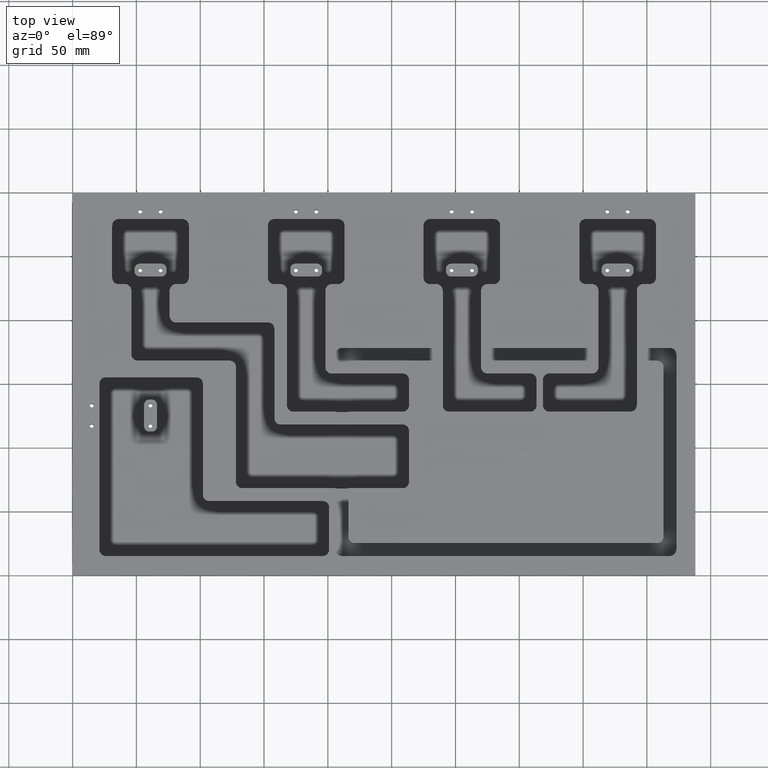
[diagram: clean part render]
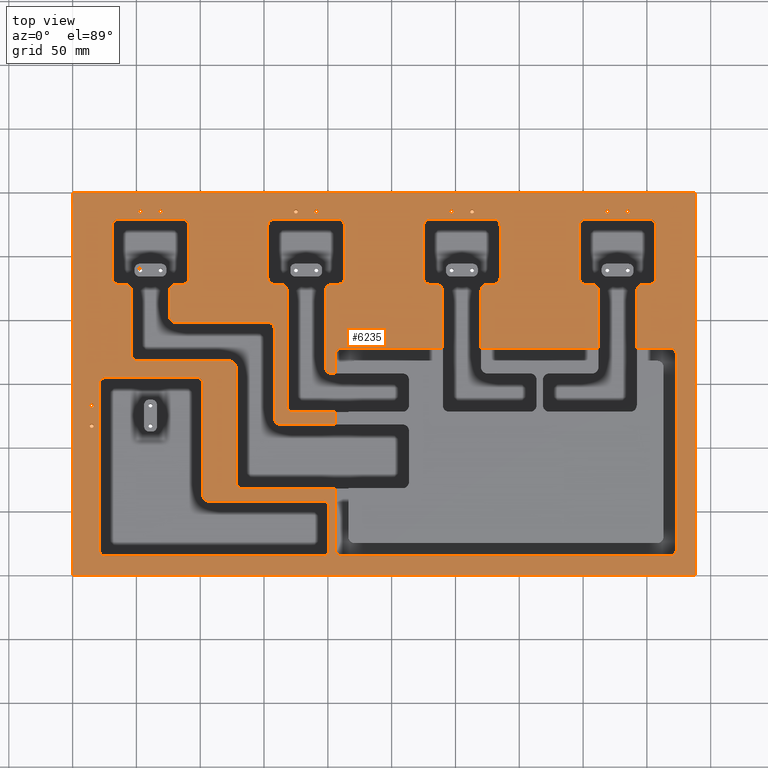
[diagram: same view with one face highlighted and labeled with its STEP entity id]
A machine part, top view. The second image highlights one B-rep face of the part: STEP entity #6235.
In plain terms, the highlighted planar face has unit normal (0, 0, -1).
Its self-contained STEP definition (entity closure, byte-faithful):
#1 = LINE ( 'NONE', #5370, #6794 ) ;
#3 = DIRECTION ( 'NONE',  ( -1.000000000000000000, 0.0000000000000000000, -0.0000000000000000000 ) ) ;
#6 = VERTEX_POINT ( 'NONE', #4902 ) ;
#30 = ORIENTED_EDGE ( 'NONE', *, *, #6408, .F. ) ;
#37 = CARTESIAN_POINT ( 'NONE',  ( 290.0000000000000000, 222.9999999999999700, 18.00000000000000000 ) ) ;
#42 = VERTEX_POINT ( 'NONE', #190 ) ;
#43 = FACE_BOUND ( 'NONE', #6726, .T. ) ;
#46 = VERTEX_POINT ( 'NONE', #166 ) ;
#49 = CARTESIAN_POINT ( 'NONE',  ( 46.00000000000002100, 173.0000000000000000, 18.00000000000000000 ) ) ;
#53 = ORIENTED_EDGE ( 'NONE', *, *, #2181, .F. ) ;
#54 = VECTOR ( 'NONE', #4573, 1000.000000000000000 ) ;
#77 = LINE ( 'NONE', #1672, #6597 ) ;
#78 = DIRECTION ( 'NONE',  ( -0.0000000000000000000, -0.0000000000000000000, 1.000000000000000000 ) ) ;
#105 = VERTEX_POINT ( 'NONE', #3295 ) ;
#110 = EDGE_CURVE ( 'NONE', #7083, #1473, #1079, .T. ) ;
#117 = VECTOR ( 'NONE', #6072, 1000.000000000000000 ) ;
#120 = EDGE_CURVE ( 'NONE', #4506, #3841, #1371, .T. ) ;
#131 = DIRECTION ( 'NONE',  ( 1.000000000000000000, 0.0000000000000000000, 0.0000000000000000000 ) ) ;
#134 = FACE_BOUND ( 'NONE', #1891, .T. ) ;
#135 = CARTESIAN_POINT ( 'NONE',  ( 397.0000000000000000, 273.9999999999999400, 18.00000000000000000 ) ) ;
#139 = ORIENTED_EDGE ( 'NONE', *, *, #2851, .T. ) ;
#143 = EDGE_CURVE ( 'NONE', #1657, #5580, #7522, .T. ) ;
#146 = DIRECTION ( 'NONE',  ( 1.000000000000000000, 0.0000000000000000000, 0.0000000000000000000 ) ) ;
#150 = DIRECTION ( 'NONE',  ( -1.000000000000000000, 0.0000000000000000000, 0.0000000000000000000 ) ) ;
#154 = CARTESIAN_POINT ( 'NONE',  ( 447.0000000000000000, 222.9999999999999700, 18.00000000000000000 ) ) ;
#163 = VERTEX_POINT ( 'NONE', #7430 ) ;
#165 = EDGE_CURVE ( 'NONE', #4119, #4750, #4568, .T. ) ;
#166 = CARTESIAN_POINT ( 'NONE',  ( 173.0000000000000600, 127.9999999999999400, 18.00000000000000000 ) ) ;
#169 = EDGE_CURVE ( 'NONE', #1685, #7527, #5885, .T. ) ;
#190 = CARTESIAN_POINT ( 'NONE',  ( 168.0000000000000000, 222.9999999999999700, 18.00000000000000000 ) ) ;
#191 = ORIENTED_EDGE ( 'NONE', *, *, #1985, .T. ) ;
#208 = VECTOR ( 'NONE', #2028, 1000.000000000000000 ) ;
#215 = CARTESIAN_POINT ( 'NONE',  ( 25.99999999999985800, 150.0000000000000000, 18.00000000000000000 ) ) ;
#226 = VECTOR ( 'NONE', #2622, 1000.000000000000000 ) ;
#239 = CARTESIAN_POINT ( 'NONE',  ( 158.0000000000000000, 122.9999999999999900, 18.00000000000000000 ) ) ;
#252 = AXIS2_PLACEMENT_3D ( 'NONE', #526, #2880, #7017 ) ;
#262 = ORIENTED_EDGE ( 'NONE', *, *, #846, .F. ) ;
#281 = DIRECTION ( 'NONE',  ( 0.0000000000000000000, 0.0000000000000000000, 1.000000000000000000 ) ) ;
#282 = ORIENTED_EDGE ( 'NONE', *, *, #5160, .F. ) ;
#286 = VERTEX_POINT ( 'NONE', #3518 ) ;
#290 = CARTESIAN_POINT ( 'NONE',  ( 81.00000000000000000, 227.9999999999999700, 18.00000000000000000 ) ) ;
#299 = VECTOR ( 'NONE', #6927, 1000.000000000000000 ) ;
#300 = EDGE_CURVE ( 'NONE', #4600, #6135, #5605, .T. ) ;
#304 = CARTESIAN_POINT ( 'NONE',  ( 69.00000000000000000, 285.0000000000000000, 18.00000000000000000 ) ) ;
#308 = EDGE_CURVE ( 'NONE', #1105, #5600, #898, .T. ) ;
#317 = AXIS2_PLACEMENT_3D ( 'NONE', #6658, #868, #1415 ) ;
#324 = AXIS2_PLACEMENT_3D ( 'NONE', #860, #2124, #6255 ) ;
#327 = CIRCLE ( 'NONE', #317, 5.000000000000000900 ) ;
#330 = CIRCLE ( 'NONE', #2140, 5.000000000000004400 ) ;
#332 = DIRECTION ( 'NONE',  ( -1.000000000000000000, 0.0000000000000000000, 0.0000000000000000000 ) ) ;
#336 = VECTOR ( 'NONE', #4918, 1000.000000000000000 ) ;
#341 = ORIENTED_EDGE ( 'NONE', *, *, #4078, .T. ) ;
#359 = EDGE_CURVE ( 'NONE', #1660, #7527, #3201, .T. ) ;
#363 = VERTEX_POINT ( 'NONE', #672 ) ;
#369 = CARTESIAN_POINT ( 'NONE',  ( 153.0000000000000000, 273.9999999999999400, 18.00000000000000000 ) ) ;
#373 = EDGE_CURVE ( 'NONE', #1950, #3841, #2916, .T. ) ;
#376 = EDGE_CURVE ( 'NONE', #6729, #3945, #5705, .T. ) ;
#378 = CARTESIAN_POINT ( 'NONE',  ( 86.00000000000000000, 278.9999999999999400, 18.00000000000000000 ) ) ;
#392 = EDGE_CURVE ( 'NONE', #1357, #6135, #4285, .T. ) ;
#416 = AXIS2_PLACEMENT_3D ( 'NONE', #3307, #2729, #6755 ) ;
#421 = CARTESIAN_POINT ( 'NONE',  ( 163.0000000000000000, 122.9999999999999600, 18.00000000000000000 ) ) ;
#423 = LINE ( 'NONE', #6807, #6502 ) ;
#424 = LINE ( 'NONE', #477, #6504 ) ;
#439 = EDGE_CURVE ( 'NONE', #508, #7465, #1825, .T. ) ;
#444 = CARTESIAN_POINT ( 'NONE',  ( 54.50000000000000000, 285.0000000000000000, 18.00000000000000000 ) ) ;
#445 = DIRECTION ( 'NONE',  ( 0.0000000000000000000, 0.0000000000000000000, 1.000000000000000000 ) ) ;
#455 = VERTEX_POINT ( 'NONE', #2957 ) ;
#460 = VERTEX_POINT ( 'NONE', #49 ) ;
#464 = ORIENTED_EDGE ( 'NONE', *, *, #5127, .T. ) ;
#472 = ORIENTED_EDGE ( 'NONE', *, *, #6077, .F. ) ;
#473 = CIRCLE ( 'NONE', #5403, 5.000000000000004400 ) ;
#476 = CIRCLE ( 'NONE', #6398, 5.000000000000004400 ) ;
#477 = CARTESIAN_POINT ( 'NONE',  ( 263.4999999999999400, 157.9999999999999700, 18.00000000000000000 ) ) ;
#487 = CARTESIAN_POINT ( 'NONE',  ( 14.99999999999985400, 117.0000000000000000, 18.00000000000000000 ) ) ;
#488 = DIRECTION ( 'NONE',  ( -1.000000000000000000, 0.0000000000000000000, 0.0000000000000000000 ) ) ;
#493 = LINE ( 'NONE', #2323, #6854 ) ;
#501 = CARTESIAN_POINT ( 'NONE',  ( 205.9999999999998300, 178.0000000000000000, 18.00000000000000000 ) ) ;
#508 = VERTEX_POINT ( 'NONE', #4547 ) ;
#518 = AXIS2_PLACEMENT_3D ( 'NONE', #6459, #5871, #968 ) ;
#526 = CARTESIAN_POINT ( 'NONE',  ( 451.9999999999999400, 273.9999999999999400, 18.00000000000000000 ) ) ;
#536 = DIRECTION ( 'NONE',  ( -1.000000000000000000, 0.0000000000000000000, 0.0000000000000000000 ) ) ;
#539 = VERTEX_POINT ( 'NONE', #2380 ) ;
#544 = CARTESIAN_POINT ( 'NONE',  ( 451.9999999999999400, 227.9999999999999700, 18.00000000000000000 ) ) ;
#545 = ORIENTED_EDGE ( 'NONE', *, *, #5064, .T. ) ;
#551 = DIRECTION ( 'NONE',  ( -1.000000000000000000, 0.0000000000000000000, 0.0000000000000000000 ) ) ;
#559 = VECTOR ( 'NONE', #6451, 1000.000000000000000 ) ;
#570 = CARTESIAN_POINT ( 'NONE',  ( 210.9999999999998600, 20.00000000000001400, 18.00000000000000000 ) ) ;
#575 = CIRCLE ( 'NONE', #6721, 5.000000000000004400 ) ;
#585 = LINE ( 'NONE', #5296, #3439 ) ;
#587 = EDGE_CURVE ( 'NONE', #6751, #2643, #6161, .T. ) ;
#592 = CARTESIAN_POINT ( 'NONE',  ( 76.00000000000000000, 203.0000000000000000, 18.00000000000000000 ) ) ;
#595 = DIRECTION ( 'NONE',  ( 2.721134864277345100E-016, -1.000000000000000000, 0.0000000000000000000 ) ) ;
#614 = ORIENTED_EDGE ( 'NONE', *, *, #2701, .F. ) ;
#624 = CARTESIAN_POINT ( 'NONE',  ( 442.0000000000000000, 227.9999999999999700, 18.00000000000000000 ) ) ;
#631 = CARTESIAN_POINT ( 'NONE',  ( 473.0000000000000000, 173.0000000000000000, 18.00000000000000000 ) ) ;
#659 = EDGE_CURVE ( 'NONE', #5162, #2552, #5966, .T. ) ;
#662 = CARTESIAN_POINT ( 'NONE',  ( 0.0000000000000000000, 0.0000000000000000000, 18.00000000000000000 ) ) ;
#663 = ORIENTED_EDGE ( 'NONE', *, *, #7312, .F. ) ;
#665 = CIRCLE ( 'NONE', #2663, 5.000000000000004400 ) ;
#666 = CIRCLE ( 'NONE', #2722, 5.000000000000000900 ) ;
#672 = CARTESIAN_POINT ( 'NONE',  ( 205.9999999999998300, 173.0000000000000000, 18.00000000000000000 ) ) ;
#696 = AXIS2_PLACEMENT_3D ( 'NONE', #5174, #7469, #7494 ) ;
#708 = CARTESIAN_POINT ( 'NONE',  ( 153.0000000000000300, 227.9999999999999700, 18.00000000000000000 ) ) ;
#716 = ORIENTED_EDGE ( 'NONE', *, *, #3983, .F. ) ;
#728 = AXIS2_PLACEMENT_3D ( 'NONE', #1468, #1390, #7363 ) ;
#738 = EDGE_CURVE ( 'NONE', #4600, #2050, #3829, .T. ) ;
#744 = CARTESIAN_POINT ( 'NONE',  ( 195.9999999999998300, 57.99999999999993600, 18.00000000000000000 ) ) ;
#748 = CARTESIAN_POINT ( 'NONE',  ( 213.0000000000000000, 227.9999999999999700, 18.00000000000000000 ) ) ;
#749 = CIRCLE ( 'NONE', #3484, 5.000000000000004400 ) ;
#754 = CARTESIAN_POINT ( 'NONE',  ( 91.00000000000000000, 278.9999999999999400, 18.00000000000000000 ) ) ;
#758 = EDGE_CURVE ( 'NONE', #363, #6090, #1738, .T. ) ;
#760 = LINE ( 'NONE', #907, #6851 ) ;
#762 = VERTEX_POINT ( 'NONE', #841 ) ;
#770 = CARTESIAN_POINT ( 'NONE',  ( 412.0000000000000000, 222.9999999999999700, 18.00000000000000000 ) ) ;
#774 = ORIENTED_EDGE ( 'NONE', *, *, #5644, .T. ) ;
#776 = DIRECTION ( 'NONE',  ( 0.0000000000000000000, 0.0000000000000000000, -1.000000000000000000 ) ) ;
#778 = EDGE_CURVE ( 'NONE', #5402, #4496, #5114, .T. ) ;
#780 = CIRCLE ( 'NONE', #3715, 1.500000000000001300 ) ;
#787 = DIRECTION ( 'NONE',  ( 0.0000000000000000000, 0.0000000000000000000, -1.000000000000000000 ) ) ;
#800 = CARTESIAN_POINT ( 'NONE',  ( 158.0000000000000000, 278.9999999999999400, 18.00000000000000000 ) ) ;
#821 = VERTEX_POINT ( 'NONE', #4954 ) ;
#834 = ORIENTED_EDGE ( 'NONE', *, *, #1484, .T. ) ;
#835 = DIRECTION ( 'NONE',  ( -0.0000000000000000000, -0.0000000000000000000, 1.000000000000000000 ) ) ;
#841 = CARTESIAN_POINT ( 'NONE',  ( 101.9999999999999300, 62.99999999999994300, 18.00000000000000000 ) ) ;
#846 = EDGE_CURVE ( 'NONE', #4506, #4420, #7425, .T. ) ;
#850 = AXIS2_PLACEMENT_3D ( 'NONE', #7013, #4682, #5336 ) ;
#852 = LINE ( 'NONE', #6066, #5084 ) ;
#859 = CARTESIAN_POINT ( 'NONE',  ( 329.9999999999999400, 232.9999999999999700, 18.00000000000000000 ) ) ;
#860 = CARTESIAN_POINT ( 'NONE',  ( 153.0000000000000000, 192.9999999999999700, 18.00000000000000000 ) ) ;
#862 = DIRECTION ( 'NONE',  ( 0.0000000000000000000, 0.0000000000000000000, 1.000000000000000000 ) ) ;
#868 = DIRECTION ( 'NONE',  ( 0.0000000000000000000, 0.0000000000000000000, -1.000000000000000000 ) ) ;
#870 = DIRECTION ( 'NONE',  ( 1.702796050038583900E-016, -1.000000000000000000, 0.0000000000000000000 ) ) ;
#871 = ORIENTED_EDGE ( 'NONE', *, *, #3620, .F. ) ;
#884 = DIRECTION ( 'NONE',  ( 0.0000000000000000000, 0.0000000000000000000, 1.000000000000000000 ) ) ;
#891 = CARTESIAN_POINT ( 'NONE',  ( 14.99999999999985400, 133.0000000000000000, 18.00000000000000000 ) ) ;
#896 = EDGE_CURVE ( 'NONE', #6621, #5658, #5503, .T. ) ;
#898 = CIRCLE ( 'NONE', #2260, 5.000000000000004400 ) ;
#907 = CARTESIAN_POINT ( 'NONE',  ( 101.9999999999999300, 95.00000000000001400, 18.00000000000000000 ) ) ;
#909 = DIRECTION ( 'NONE',  ( 1.702796050038583900E-016, -1.000000000000000000, 0.0000000000000000000 ) ) ;
#916 = ORIENTED_EDGE ( 'NONE', *, *, #3677, .F. ) ;
#942 = DIRECTION ( 'NONE',  ( -1.000000000000000000, 0.0000000000000000000, 0.0000000000000000000 ) ) ;
#943 = CARTESIAN_POINT ( 'NONE',  ( 158.0000000000000000, 197.9999999999999700, 18.00000000000000000 ) ) ;
#944 = DIRECTION ( 'NONE',  ( -1.000000000000000000, 0.0000000000000000000, 0.0000000000000000000 ) ) ;
#954 = CIRCLE ( 'NONE', #518, 5.000000000000004400 ) ;
#968 = DIRECTION ( 'NONE',  ( -1.000000000000000000, 0.0000000000000000000, 0.0000000000000000000 ) ) ;
#973 = CARTESIAN_POINT ( 'NONE',  ( 81.00000000000000000, 222.9999999999999700, 18.00000000000000000 ) ) ;
#974 = EDGE_CURVE ( 'NONE', #5402, #7465, #5599, .T. ) ;
#979 = VECTOR ( 'NONE', #3632, 1000.000000000000000 ) ;
#981 = CARTESIAN_POINT ( 'NONE',  ( 433.5000000000000000, 285.0000000000000000, 18.00000000000000000 ) ) ;
#1007 = CARTESIAN_POINT ( 'NONE',  ( 36.00000000000000000, 278.9999999999999400, 18.00000000000000000 ) ) ;
#1008 = AXIS2_PLACEMENT_3D ( 'NONE', #6013, #1743, #3 ) ;
#1009 = ORIENTED_EDGE ( 'NONE', *, *, #439, .T. ) ;
#1013 = CARTESIAN_POINT ( 'NONE',  ( 473.0000000000000000, 178.0000000000000000, 18.00000000000000000 ) ) ;
#1017 = VERTEX_POINT ( 'NONE', #5438 ) ;
#1022 = ORIENTED_EDGE ( 'NONE', *, *, #2228, .F. ) ;
#1027 = EDGE_CURVE ( 'NONE', #286, #2491, #4929, .T. ) ;
#1033 = LINE ( 'NONE', #6091, #3060 ) ;
#1035 = LINE ( 'NONE', #2647, #226 ) ;
#1052 = CIRCLE ( 'NONE', #5948, 1.500000000000001300 ) ;
#1055 = VERTEX_POINT ( 'NONE', #3388 ) ;
#1058 = VERTEX_POINT ( 'NONE', #2177 ) ;
#1079 = LINE ( 'NONE', #5589, #6169 ) ;
#1105 = VERTEX_POINT ( 'NONE', #378 ) ;
#1110 = CARTESIAN_POINT ( 'NONE',  ( 213.0000000000000000, 278.9999999999999400, 18.00000000000000000 ) ) ;
#1116 = LINE ( 'NONE', #6950, #299 ) ;
#1124 = DIRECTION ( 'NONE',  ( 0.0000000000000000000, 0.0000000000000000000, -1.000000000000000000 ) ) ;
#1129 = DIRECTION ( 'NONE',  ( 0.0000000000000000000, 0.0000000000000000000, 1.000000000000000000 ) ) ;
#1134 = FACE_BOUND ( 'NONE', #3676, .T. ) ;
#1141 = CIRCLE ( 'NONE', #4495, 5.000000000000004400 ) ;
#1142 = VERTEX_POINT ( 'NONE', #6916 ) ;
#1199 = VERTEX_POINT ( 'NONE', #444 ) ;
#1222 = DIRECTION ( 'NONE',  ( 0.0000000000000000000, 0.0000000000000000000, -1.000000000000000000 ) ) ;
#1223 = FACE_BOUND ( 'NONE', #3384, .T. ) ;
#1234 = VERTEX_POINT ( 'NONE', #5149 ) ;
#1239 = EDGE_CURVE ( 'NONE', #3761, #3414, #77, .T. ) ;
#1254 = CIRCLE ( 'NONE', #3213, 5.000000000000004400 ) ;
#1259 = CIRCLE ( 'NONE', #3992, 1.500000000000001300 ) ;
#1274 = EDGE_CURVE ( 'NONE', #6090, #1234, #424, .T. ) ;
#1308 = VERTEX_POINT ( 'NONE', #3586 ) ;
#1319 = EDGE_CURVE ( 'NONE', #4296, #460, #5591, .T. ) ;
#1328 = ORIENTED_EDGE ( 'NONE', *, *, #2206, .T. ) ;
#1335 = AXIS2_PLACEMENT_3D ( 'NONE', #3339, #7452, #6922 ) ;
#1337 = DIRECTION ( 'NONE',  ( -1.000000000000000000, 3.426614273534430700E-016, 0.0000000000000000000 ) ) ;
#1350 = LINE ( 'NONE', #1949, #336 ) ;
#1354 = CARTESIAN_POINT ( 'NONE',  ( 402.0000000000000000, 227.9999999999999700, 18.00000000000000000 ) ) ;
#1357 = VERTEX_POINT ( 'NONE', #3224 ) ;
#1371 = CIRCLE ( 'NONE', #6748, 5.000000000000004400 ) ;
#1374 = CARTESIAN_POINT ( 'NONE',  ( 210.9999999999998600, 15.00000000000001400, 18.00000000000000000 ) ) ;
#1375 = ORIENTED_EDGE ( 'NONE', *, *, #3355, .T. ) ;
#1379 = DIRECTION ( 'NONE',  ( -1.000000000000000000, 0.0000000000000000000, 0.0000000000000000000 ) ) ;
#1385 = VERTEX_POINT ( 'NONE', #7372 ) ;
#1386 = DIRECTION ( 'NONE',  ( 0.0000000000000000000, 0.0000000000000000000, 1.000000000000000000 ) ) ;
#1390 = DIRECTION ( 'NONE',  ( 0.0000000000000000000, 0.0000000000000000000, -1.000000000000000000 ) ) ;
#1399 = EDGE_CURVE ( 'NONE', #3272, #2331, #2084, .T. ) ;
#1415 = DIRECTION ( 'NONE',  ( -1.000000000000000000, 0.0000000000000000000, 0.0000000000000000000 ) ) ;
#1428 = VERTEX_POINT ( 'NONE', #1430 ) ;
#1430 = CARTESIAN_POINT ( 'NONE',  ( 70.50000000000001400, 285.0000000000000000, 18.00000000000000000 ) ) ;
#1435 = CARTESIAN_POINT ( 'NONE',  ( 13.49999999999986000, 133.0000000000000000, 18.00000000000000000 ) ) ;
#1453 = CARTESIAN_POINT ( 'NONE',  ( 314.5000000000000000, 285.0000000000000000, 18.00000000000000000 ) ) ;
#1460 = VERTEX_POINT ( 'NONE', #369 ) ;
#1468 = CARTESIAN_POINT ( 'NONE',  ( 451.9999999999999400, 232.9999999999999700, 18.00000000000000000 ) ) ;
#1471 = ORIENTED_EDGE ( 'NONE', *, *, #7201, .F. ) ;
#1473 = VERTEX_POINT ( 'NONE', #6883 ) ;
#1475 = ORIENTED_EDGE ( 'NONE', *, *, #5583, .F. ) ;
#1484 = EDGE_CURVE ( 'NONE', #5162, #7165, #4084, .T. ) ;
#1488 = LINE ( 'NONE', #2213, #7197 ) ;
#1490 = CARTESIAN_POINT ( 'NONE',  ( 81.00000000000000000, 203.0000000000000000, 18.00000000000000000 ) ) ;
#1493 = AXIS2_PLACEMENT_3D ( 'NONE', #4900, #281, #7231 ) ;
#1513 = LINE ( 'NONE', #501, #54 ) ;
#1515 = DIRECTION ( 'NONE',  ( 0.0000000000000000000, 0.0000000000000000000, 1.000000000000000000 ) ) ;
#1517 = CARTESIAN_POINT ( 'NONE',  ( 198.0000000000000000, 222.9999999999999700, 18.00000000000000000 ) ) ;
#1530 = LINE ( 'NONE', #4587, #7597 ) ;
#1571 = CARTESIAN_POINT ( 'NONE',  ( 101.9999999999999300, 149.9999999999999700, 18.00000000000000000 ) ) ;
#1573 = DIRECTION ( 'NONE',  ( -0.0000000000000000000, -0.0000000000000000000, 1.000000000000000000 ) ) ;
#1582 = DIRECTION ( 'NONE',  ( -1.000000000000000000, 0.0000000000000000000, 0.0000000000000000000 ) ) ;
#1588 = ORIENTED_EDGE ( 'NONE', *, *, #4935, .F. ) ;
#1600 = VERTEX_POINT ( 'NONE', #1967 ) ;
#1602 = FACE_BOUND ( 'NONE', #3836, .T. ) ;
#1624 = EDGE_LOOP ( 'NONE', ( #1475, #6519 ) ) ;
#1628 = CIRCLE ( 'NONE', #6530, 1.499999999999994400 ) ;
#1633 = EDGE_CURVE ( 'NONE', #46, #1881, #1254, .T. ) ;
#1634 = DIRECTION ( 'NONE',  ( 2.312964634635743000E-016, -1.000000000000000000, 0.0000000000000000000 ) ) ;
#1638 = DIRECTION ( 'NONE',  ( 1.000000000000000000, 1.060108790874715600E-016, -0.0000000000000000000 ) ) ;
#1646 = CARTESIAN_POINT ( 'NONE',  ( 16.49999999999984700, 133.0000000000000000, 18.00000000000000000 ) ) ;
#1647 = VERTEX_POINT ( 'NONE', #6596 ) ;
#1651 = CARTESIAN_POINT ( 'NONE',  ( 203.0000000000000000, 162.9999999999999700, 18.00000000000000000 ) ) ;
#1654 = ORIENTED_EDGE ( 'NONE', *, *, #738, .F. ) ;
#1657 = VERTEX_POINT ( 'NONE', #1374 ) ;
#1660 = VERTEX_POINT ( 'NONE', #1354 ) ;
#1664 = DIRECTION ( 'NONE',  ( -1.000000000000000000, 0.0000000000000000000, 0.0000000000000000000 ) ) ;
#1665 = ORIENTED_EDGE ( 'NONE', *, *, #6792, .T. ) ;
#1672 = CARTESIAN_POINT ( 'NONE',  ( 91.00000000000000000, 227.9999999999999700, 18.00000000000000000 ) ) ;
#1684 = CARTESIAN_POINT ( 'NONE',  ( 205.9999999999998300, 117.9999999999999600, 18.00000000000000000 ) ) ;
#1685 = VERTEX_POINT ( 'NONE', #770 ) ;
#1686 = VERTEX_POINT ( 'NONE', #2541 ) ;
#1690 = EDGE_CURVE ( 'NONE', #105, #1308, #6589, .T. ) ;
#1704 = EDGE_LOOP ( 'NONE', ( #2667, #4318 ) ) ;
#1711 = LINE ( 'NONE', #5771, #3068 ) ;
#1738 = LINE ( 'NONE', #5541, #4092 ) ;
#1740 = CARTESIAN_POINT ( 'NONE',  ( 123.0000000000000000, 162.9999999999999700, 18.00000000000000000 ) ) ;
#1743 = DIRECTION ( 'NONE',  ( 0.0000000000000000000, 0.0000000000000000000, -1.000000000000000000 ) ) ;
#1752 = VERTEX_POINT ( 'NONE', #2094 ) ;
#1785 = DIRECTION ( 'NONE',  ( -1.000000000000000000, -0.0000000000000000000, -0.0000000000000000000 ) ) ;
#1788 = LINE ( 'NONE', #6115, #6023 ) ;
#1795 = EDGE_CURVE ( 'NONE', #6448, #6350, #5487, .T. ) ;
#1801 = VERTEX_POINT ( 'NONE', #4408 ) ;
#1802 = CARTESIAN_POINT ( 'NONE',  ( 456.9999999999999400, 227.9999999999999700, 18.00000000000000000 ) ) ;
#1825 = CIRCLE ( 'NONE', #252, 5.000000000000004400 ) ;
#1834 = VERTEX_POINT ( 'NONE', #2238 ) ;
#1844 = DIRECTION ( 'NONE',  ( -0.0000000000000000000, -0.0000000000000000000, 1.000000000000000000 ) ) ;
#1863 = VERTEX_POINT ( 'NONE', #5111 ) ;
#1870 = DIRECTION ( 'NONE',  ( -1.000000000000000000, -0.0000000000000000000, -0.0000000000000000000 ) ) ;
#1871 = LINE ( 'NONE', #2852, #5072 ) ;
#1872 = AXIS2_PLACEMENT_3D ( 'NONE', #3417, #2784, #6333 ) ;
#1874 = ORIENTED_EDGE ( 'NONE', *, *, #4196, .T. ) ;
#1881 = VERTEX_POINT ( 'NONE', #2720 ) ;
#1891 = EDGE_LOOP ( 'NONE', ( #6194, #2885 ) ) ;
#1900 = LINE ( 'NONE', #3580, #3728 ) ;
#1902 = AXIS2_PLACEMENT_3D ( 'NONE', #4592, #1129, #5785 ) ;
#1915 = EDGE_CURVE ( 'NONE', #1105, #2999, #4164, .T. ) ;
#1938 = DIRECTION ( 'NONE',  ( 0.0000000000000000000, 0.0000000000000000000, -1.000000000000000000 ) ) ;
#1940 = DIRECTION ( 'NONE',  ( -1.000000000000000000, 0.0000000000000000000, 0.0000000000000000000 ) ) ;
#1949 = CARTESIAN_POINT ( 'NONE',  ( 263.4999999999999400, 67.99999999999994300, 18.00000000000000000 ) ) ;
#1950 = VERTEX_POINT ( 'NONE', #5725 ) ;
#1953 = AXIS2_PLACEMENT_3D ( 'NONE', #2457, #7103, #4116 ) ;
#1954 = CARTESIAN_POINT ( 'NONE',  ( 173.5000000000000000, 285.0000000000000000, 18.00000000000000000 ) ) ;
#1967 = CARTESIAN_POINT ( 'NONE',  ( 51.50000000000000000, 285.0000000000000000, 18.00000000000000000 ) ) ;
#1985 = EDGE_CURVE ( 'NONE', #3666, #2318, #7414, .T. ) ;
#1996 = CIRCLE ( 'NONE', #2249, 1.500000000000001300 ) ;
#2028 = DIRECTION ( 'NONE',  ( 1.000000000000000000, 0.0000000000000000000, 0.0000000000000000000 ) ) ;
#2031 = CARTESIAN_POINT ( 'NONE',  ( 205.9999999999998600, 20.00000000000001800, 18.00000000000000000 ) ) ;
#2050 = VERTEX_POINT ( 'NONE', #3553 ) ;
#2055 = CIRCLE ( 'NONE', #5087, 5.000000000000004400 ) ;
#2071 = VERTEX_POINT ( 'NONE', #4115 ) ;
#2079 = EDGE_CURVE ( 'NONE', #1647, #1142, #5005, .T. ) ;
#2084 = CIRCLE ( 'NONE', #6428, 5.000000000000004400 ) ;
#2094 = CARTESIAN_POINT ( 'NONE',  ( 163.0000000000000000, 117.9999999999999600, 18.00000000000000000 ) ) ;
#2095 = CARTESIAN_POINT ( 'NONE',  ( 297.0000000000000000, 285.0000000000000000, 18.00000000000000000 ) ) ;
#2110 = CARTESIAN_POINT ( 'NONE',  ( 213.0000000000000000, 232.9999999999999700, 18.00000000000000000 ) ) ;
#2115 = VERTEX_POINT ( 'NONE', #4751 ) ;
#2124 = DIRECTION ( 'NONE',  ( 0.0000000000000000000, 0.0000000000000000000, -1.000000000000000000 ) ) ;
#2125 = ORIENTED_EDGE ( 'NONE', *, *, #5122, .T. ) ;
#2137 = VECTOR ( 'NONE', #2385, 1000.000000000000000 ) ;
#2138 = VERTEX_POINT ( 'NONE', #135 ) ;
#2140 = AXIS2_PLACEMENT_3D ( 'NONE', #421, #4525, #6935 ) ;
#2148 = CARTESIAN_POINT ( 'NONE',  ( 205.9999999999998300, 178.0000000000000000, 18.00000000000000000 ) ) ;
#2151 = CARTESIAN_POINT ( 'NONE',  ( 123.0000000000000000, 167.9999999999999700, 18.00000000000000000 ) ) ;
#2155 = DIRECTION ( 'NONE',  ( -0.0000000000000000000, 1.000000000000000000, -0.0000000000000000000 ) ) ;
#2158 = CIRCLE ( 'NONE', #696, 1.499999999999994400 ) ;
#2171 = CARTESIAN_POINT ( 'NONE',  ( 69.00000000000000000, 285.0000000000000000, 18.00000000000000000 ) ) ;
#2174 = DIRECTION ( 'NONE',  ( -1.000000000000000000, 0.0000000000000000000, 0.0000000000000000000 ) ) ;
#2177 = CARTESIAN_POINT ( 'NONE',  ( 158.0000000000000000, 192.9999999999999700, 18.00000000000000000 ) ) ;
#2181 = EDGE_CURVE ( 'NONE', #42, #1881, #3456, .T. ) ;
#2182 = EDGE_CURVE ( 'NONE', #1199, #1600, #5090, .T. ) ;
#2186 = DIRECTION ( 'NONE',  ( 2.312964634635743000E-016, -1.000000000000000000, 0.0000000000000000000 ) ) ;
#2206 = EDGE_CURVE ( 'NONE', #1357, #6717, #327, .T. ) ;
#2213 = CARTESIAN_POINT ( 'NONE',  ( 290.0000000000000000, 227.9999999999999700, 18.00000000000000000 ) ) ;
#2228 = EDGE_CURVE ( 'NONE', #4750, #4119, #6485, .T. ) ;
#2229 = VERTEX_POINT ( 'NONE', #5510 ) ;
#2235 = CARTESIAN_POINT ( 'NONE',  ( 334.9999999999999400, 227.9999999999999700, 18.00000000000000000 ) ) ;
#2238 = CARTESIAN_POINT ( 'NONE',  ( 329.9999999999999400, 227.9999999999999700, 18.00000000000000000 ) ) ;
#2241 = CIRCLE ( 'NONE', #4295, 5.000000000000004400 ) ;
#2246 = ORIENTED_EDGE ( 'NONE', *, *, #143, .F. ) ;
#2247 = ORIENTED_EDGE ( 'NONE', *, *, #3968, .T. ) ;
#2249 = AXIS2_PLACEMENT_3D ( 'NONE', #7167, #6522, #7092 ) ;
#2256 = CIRCLE ( 'NONE', #324, 5.000000000000004400 ) ;
#2258 = CARTESIAN_POINT ( 'NONE',  ( 320.0000000000000000, 227.9999999999999700, 18.00000000000000000 ) ) ;
#2260 = AXIS2_PLACEMENT_3D ( 'NONE', #2294, #6435, #2932 ) ;
#2265 = ORIENTED_EDGE ( 'NONE', *, *, #1274, .F. ) ;
#2269 = CARTESIAN_POINT ( 'NONE',  ( 407.0000000000000000, 227.9999999999999700, 18.00000000000000000 ) ) ;
#2271 = AXIS2_PLACEMENT_3D ( 'NONE', #5025, #1515, #5639 ) ;
#2282 = DIRECTION ( 'NONE',  ( -0.0000000000000000000, 1.000000000000000000, -0.0000000000000000000 ) ) ;
#2286 = DIRECTION ( 'NONE',  ( 0.0000000000000000000, 0.0000000000000000000, -1.000000000000000000 ) ) ;
#2288 = ORIENTED_EDGE ( 'NONE', *, *, #896, .F. ) ;
#2294 = CARTESIAN_POINT ( 'NONE',  ( 86.00000000000000000, 273.9999999999999400, 18.00000000000000000 ) ) ;
#2296 = DIRECTION ( 'NONE',  ( 1.000000000000000000, 0.0000000000000000000, 0.0000000000000000000 ) ) ;
#2300 = DIRECTION ( 'NONE',  ( -0.0000000000000000000, -0.0000000000000000000, 1.000000000000000000 ) ) ;
#2303 = EDGE_CURVE ( 'NONE', #5821, #1058, #6855, .T. ) ;
#2310 = ORIENTED_EDGE ( 'NONE', *, *, #1690, .F. ) ;
#2315 = LINE ( 'NONE', #2258, #4243 ) ;
#2318 = VERTEX_POINT ( 'NONE', #2151 ) ;
#2323 = CARTESIAN_POINT ( 'NONE',  ( 128.0000000000000000, 167.9999999999999700, 18.00000000000000000 ) ) ;
#2331 = VERTEX_POINT ( 'NONE', #3840 ) ;
#2333 = CARTESIAN_POINT ( 'NONE',  ( 456.9999999999999400, 278.9999999999999400, 18.00000000000000000 ) ) ;
#2355 = EDGE_LOOP ( 'NONE', ( #2416, #4364 ) ) ;
#2365 = VECTOR ( 'NONE', #2452, 1000.000000000000000 ) ;
#2380 = CARTESIAN_POINT ( 'NONE',  ( 397.0000000000000000, 232.9999999999999700, 18.00000000000000000 ) ) ;
#2383 = LINE ( 'NONE', #4711, #559 ) ;
#2384 = CARTESIAN_POINT ( 'NONE',  ( 280.0000000000000000, 227.9999999999999700, 18.00000000000000000 ) ) ;
#2385 = DIRECTION ( 'NONE',  ( -1.000000000000000000, -0.0000000000000000000, -0.0000000000000000000 ) ) ;
#2389 = CARTESIAN_POINT ( 'NONE',  ( 442.0000000000000000, 222.9999999999999700, 18.00000000000000000 ) ) ;
#2390 = ORIENTED_EDGE ( 'NONE', *, *, #6067, .F. ) ;
#2391 = ORIENTED_EDGE ( 'NONE', *, *, #359, .F. ) ;
#2394 = CARTESIAN_POINT ( 'NONE',  ( 468.0000000000000000, 20.00000000000001800, 18.00000000000000000 ) ) ;
#2395 = DIRECTION ( 'NONE',  ( 0.0000000000000000000, 0.0000000000000000000, 1.000000000000000000 ) ) ;
#2399 = DIRECTION ( 'NONE',  ( -1.000000000000000000, 0.0000000000000000000, 0.0000000000000000000 ) ) ;
#2402 = ORIENTED_EDGE ( 'NONE', *, *, #5015, .F. ) ;
#2405 = DIRECTION ( 'NONE',  ( 0.0000000000000000000, 0.0000000000000000000, -1.000000000000000000 ) ) ;
#2408 = EDGE_CURVE ( 'NONE', #1385, #6027, #7314, .T. ) ;
#2416 = ORIENTED_EDGE ( 'NONE', *, *, #4431, .F. ) ;
#2441 = CARTESIAN_POINT ( 'NONE',  ( 153.0000000000000000, 278.9999999999999400, 18.00000000000000000 ) ) ;
#2445 = EDGE_CURVE ( 'NONE', #4955, #4728, #3967, .T. ) ;
#2449 = VECTOR ( 'NONE', #5333, 1000.000000000000000 ) ;
#2452 = DIRECTION ( 'NONE',  ( 1.000000000000000000, 0.0000000000000000000, 0.0000000000000000000 ) ) ;
#2457 = CARTESIAN_POINT ( 'NONE',  ( 195.9999999999998300, 52.99999999999993600, 18.00000000000000000 ) ) ;
#2459 = EDGE_LOOP ( 'NONE', ( #5800, #4462 ) ) ;
#2488 = VERTEX_POINT ( 'NONE', #2862 ) ;
#2491 = VERTEX_POINT ( 'NONE', #5714 ) ;
#2495 = CARTESIAN_POINT ( 'NONE',  ( 36.00000000000001400, 227.9999999999999700, 18.00000000000000000 ) ) ;
#2506 = DIRECTION ( 'NONE',  ( 2.312964634635743000E-016, -1.000000000000000000, 0.0000000000000000000 ) ) ;
#2527 = ORIENTED_EDGE ( 'NONE', *, *, #758, .F. ) ;
#2536 = CIRCLE ( 'NONE', #3622, 5.000000000000004400 ) ;
#2541 = CARTESIAN_POINT ( 'NONE',  ( 133.0000000000000000, 67.99999999999992900, 18.00000000000000000 ) ) ;
#2552 = VERTEX_POINT ( 'NONE', #5181 ) ;
#2561 = EDGE_CURVE ( 'NONE', #6751, #7105, #665, .T. ) ;
#2579 = LINE ( 'NONE', #4396, #208 ) ;
#2622 = DIRECTION ( 'NONE',  ( -1.000000000000000000, -0.0000000000000000000, -0.0000000000000000000 ) ) ;
#2638 = CARTESIAN_POINT ( 'NONE',  ( 313.0000000000000000, 285.0000000000000000, 18.00000000000000000 ) ) ;
#2642 = DIRECTION ( 'NONE',  ( -0.0000000000000000000, 1.000000000000000000, -0.0000000000000000000 ) ) ;
#2643 = VERTEX_POINT ( 'NONE', #5941 ) ;
#2644 = EDGE_CURVE ( 'NONE', #3430, #4496, #6311, .T. ) ;
#2647 = CARTESIAN_POINT ( 'NONE',  ( 0.0000000000000000000, 300.0000000000000000, 18.00000000000000000 ) ) ;
#2653 = EDGE_CURVE ( 'NONE', #3644, #2331, #5377, .T. ) ;
#2663 = AXIS2_PLACEMENT_3D ( 'NONE', #7019, #1222, #5843 ) ;
#2667 = ORIENTED_EDGE ( 'NONE', *, *, #7337, .F. ) ;
#2670 = CIRCLE ( 'NONE', #1902, 1.500000000000001300 ) ;
#2679 = AXIS2_PLACEMENT_3D ( 'NONE', #1651, #2840, #488 ) ;
#2696 = DIRECTION ( 'NONE',  ( 0.0000000000000000000, 0.0000000000000000000, -1.000000000000000000 ) ) ;
#2701 = EDGE_CURVE ( 'NONE', #7454, #1017, #852, .T. ) ;
#2720 = CARTESIAN_POINT ( 'NONE',  ( 168.0000000000000300, 132.9999999999999400, 18.00000000000000000 ) ) ;
#2722 = AXIS2_PLACEMENT_3D ( 'NONE', #215, #4979, #3765 ) ;
#2725 = CARTESIAN_POINT ( 'NONE',  ( 36.00000000000000000, 273.9999999999999400, 18.00000000000000000 ) ) ;
#2729 = DIRECTION ( 'NONE',  ( 0.0000000000000000000, 0.0000000000000000000, -1.000000000000000000 ) ) ;
#2735 = EDGE_CURVE ( 'NONE', #3430, #5290, #6858, .T. ) ;
#2784 = DIRECTION ( 'NONE',  ( 0.0000000000000000000, 0.0000000000000000000, 1.000000000000000000 ) ) ;
#2794 = CARTESIAN_POINT ( 'NONE',  ( 31.00000000000000000, 278.9999999999999400, 18.00000000000000000 ) ) ;
#2807 = CARTESIAN_POINT ( 'NONE',  ( 456.9999999999999400, 273.9999999999999400, 18.00000000000000000 ) ) ;
#2812 = VERTEX_POINT ( 'NONE', #7218 ) ;
#2813 = AXIS2_PLACEMENT_3D ( 'NONE', #6389, #4019, #5222 ) ;
#2819 = AXIS2_PLACEMENT_3D ( 'NONE', #3077, #6607, #6631 ) ;
#2830 = CARTESIAN_POINT ( 'NONE',  ( 436.5000000000000000, 285.0000000000000000, 18.00000000000000000 ) ) ;
#2831 = VERTEX_POINT ( 'NONE', #800 ) ;
#2834 = VERTEX_POINT ( 'NONE', #5556 ) ;
#2835 = EDGE_CURVE ( 'NONE', #1473, #4955, #1035, .T. ) ;
#2836 = DIRECTION ( 'NONE',  ( -1.000000000000000000, 0.0000000000000000000, 0.0000000000000000000 ) ) ;
#2837 = ORIENTED_EDGE ( 'NONE', *, *, #3536, .T. ) ;
#2840 = DIRECTION ( 'NONE',  ( -0.0000000000000000000, -0.0000000000000000000, 1.000000000000000000 ) ) ;
#2847 = VERTEX_POINT ( 'NONE', #3733 ) ;
#2849 = ORIENTED_EDGE ( 'NONE', *, *, #1239, .F. ) ;
#2851 = EDGE_CURVE ( 'NONE', #2115, #3414, #3883, .T. ) ;
#2852 = CARTESIAN_POINT ( 'NONE',  ( 198.0000000000000000, 227.9999999999999700, 18.00000000000000000 ) ) ;
#2862 = CARTESIAN_POINT ( 'NONE',  ( 67.49999999999998600, 285.0000000000000000, 18.00000000000000000 ) ) ;
#2880 = DIRECTION ( 'NONE',  ( 0.0000000000000000000, 0.0000000000000000000, -1.000000000000000000 ) ) ;
#2885 = ORIENTED_EDGE ( 'NONE', *, *, #5259, .F. ) ;
#2890 = EDGE_CURVE ( 'NONE', #821, #2999, #2965, .T. ) ;
#2896 = VECTOR ( 'NONE', #7402, 1000.000000000000000 ) ;
#2903 = CIRCLE ( 'NONE', #3376, 1.500000000000015100 ) ;
#2916 = LINE ( 'NONE', #6552, #4945 ) ;
#2932 = DIRECTION ( 'NONE',  ( -1.000000000000000000, 0.0000000000000000000, 0.0000000000000000000 ) ) ;
#2934 = DIRECTION ( 'NONE',  ( -1.000000000000000000, -0.0000000000000000000, -0.0000000000000000000 ) ) ;
#2943 = EDGE_CURVE ( 'NONE', #762, #4686, #760, .T. ) ;
#2949 = VERTEX_POINT ( 'NONE', #981 ) ;
#2957 = CARTESIAN_POINT ( 'NONE',  ( 128.0000000000000000, 72.99999999999997200, 18.00000000000000000 ) ) ;
#2965 = CIRCLE ( 'NONE', #3941, 5.000000000000000900 ) ;
#2968 = CARTESIAN_POINT ( 'NONE',  ( 488.0000000000000000, 0.0000000000000000000, 18.00000000000000000 ) ) ;
#2982 = DIRECTION ( 'NONE',  ( -1.000000000000000000, 0.0000000000000000000, 0.0000000000000000000 ) ) ;
#2987 = CIRCLE ( 'NONE', #2819, 1.500000000000001300 ) ;
#2999 = VERTEX_POINT ( 'NONE', #1007 ) ;
#3014 = CARTESIAN_POINT ( 'NONE',  ( 51.00000000000001400, 173.0000000000000000, 18.00000000000000000 ) ) ;
#3031 = DIRECTION ( 'NONE',  ( -1.000000000000000000, 0.0000000000000000000, 0.0000000000000000000 ) ) ;
#3032 = ORIENTED_EDGE ( 'NONE', *, *, #373, .F. ) ;
#3034 = ORIENTED_EDGE ( 'NONE', *, *, #2943, .F. ) ;
#3060 = VECTOR ( 'NONE', #4387, 1000.000000000000000 ) ;
#3068 = VECTOR ( 'NONE', #595, 1000.000000000000000 ) ;
#3071 = DIRECTION ( 'NONE',  ( -1.000000000000000000, -0.0000000000000000000, -0.0000000000000000000 ) ) ;
#3076 = AXIS2_PLACEMENT_3D ( 'NONE', #7499, #6351, #942 ) ;
#3077 = CARTESIAN_POINT ( 'NONE',  ( 435.0000000000000000, 285.0000000000000000, 18.00000000000000000 ) ) ;
#3081 = CARTESIAN_POINT ( 'NONE',  ( 96.99999999999991500, 149.9999999999999700, 18.00000000000000000 ) ) ;
#3084 = ORIENTED_EDGE ( 'NONE', *, *, #5682, .F. ) ;
#3101 = EDGE_CURVE ( 'NONE', #2834, #3945, #666, .T. ) ;
#3105 = CARTESIAN_POINT ( 'NONE',  ( 168.0000000000000000, 227.9999999999999700, 18.00000000000000000 ) ) ;
#3106 = ORIENTED_EDGE ( 'NONE', *, *, #659, .F. ) ;
#3129 = AXIS2_PLACEMENT_3D ( 'NONE', #3795, #3888, #944 ) ;
#3156 = CIRCLE ( 'NONE', #6582, 1.499999999999994400 ) ;
#3175 = DIRECTION ( 'NONE',  ( -1.000000000000000000, 0.0000000000000000000, 0.0000000000000000000 ) ) ;
#3183 = CARTESIAN_POINT ( 'NONE',  ( 313.0000000000000000, 285.0000000000000000, 18.00000000000000000 ) ) ;
#3201 = LINE ( 'NONE', #4797, #2365 ) ;
#3208 = DIRECTION ( 'NONE',  ( 0.0000000000000000000, 0.0000000000000000000, -1.000000000000000000 ) ) ;
#3213 = AXIS2_PLACEMENT_3D ( 'NONE', #5442, #6671, #1940 ) ;
#3214 = EDGE_CURVE ( 'NONE', #1863, #2229, #4996, .T. ) ;
#3224 = CARTESIAN_POINT ( 'NONE',  ( 25.99999999999991100, 14.99999999999997900, 18.00000000000000000 ) ) ;
#3230 = DIRECTION ( 'NONE',  ( 0.0000000000000000000, -1.000000000000000000, 0.0000000000000000000 ) ) ;
#3232 = CIRCLE ( 'NONE', #5274, 1.500000000000001300 ) ;
#3238 = CARTESIAN_POINT ( 'NONE',  ( 325.0000000000000000, 222.9999999999999700, 18.00000000000000000 ) ) ;
#3248 = DIRECTION ( 'NONE',  ( -1.000000000000000000, 0.0000000000000000000, 0.0000000000000000000 ) ) ;
#3268 = DIRECTION ( 'NONE',  ( 0.0000000000000000000, 1.000000000000000000, 0.0000000000000000000 ) ) ;
#3272 = VERTEX_POINT ( 'NONE', #2110 ) ;
#3279 = AXIS2_PLACEMENT_3D ( 'NONE', #6738, #3208, #3798 ) ;
#3295 = CARTESIAN_POINT ( 'NONE',  ( 275.0000000000000000, 273.9999999999999400, 18.00000000000000000 ) ) ;
#3297 = ORIENTED_EDGE ( 'NONE', *, *, #4665, .F. ) ;
#3307 = CARTESIAN_POINT ( 'NONE',  ( 402.0000000000000000, 232.9999999999999700, 18.00000000000000000 ) ) ;
#3311 = CARTESIAN_POINT ( 'NONE',  ( 176.5000000000000000, 285.0000000000000000, 18.00000000000000000 ) ) ;
#3315 = DIRECTION ( 'NONE',  ( -1.000000000000000000, 0.0000000000000000000, 0.0000000000000000000 ) ) ;
#3320 = VERTEX_POINT ( 'NONE', #5239 ) ;
#3323 = VERTEX_POINT ( 'NONE', #1646 ) ;
#3339 = CARTESIAN_POINT ( 'NONE',  ( 407.0000000000000000, 222.9999999999999700, 18.00000000000000000 ) ) ;
#3345 = DIRECTION ( 'NONE',  ( -1.000000000000000000, -0.0000000000000000000, -0.0000000000000000000 ) ) ;
#3351 = EDGE_CURVE ( 'NONE', #2491, #6, #2315, .T. ) ;
#3355 = EDGE_CURVE ( 'NONE', #7029, #5658, #575, .T. ) ;
#3356 = CIRCLE ( 'NONE', #850, 1.500000000000001300 ) ;
#3365 = DIRECTION ( 'NONE',  ( -0.0000000000000000000, -1.000000000000000000, -0.0000000000000000000 ) ) ;
#3369 = EDGE_CURVE ( 'NONE', #762, #3383, #4714, .T. ) ;
#3376 = AXIS2_PLACEMENT_3D ( 'NONE', #304, #884, #7515 ) ;
#3383 = VERTEX_POINT ( 'NONE', #3392 ) ;
#3384 = EDGE_LOOP ( 'NONE', ( #1471, #5949 ) ) ;
#3385 = DIRECTION ( 'NONE',  ( -0.0000000000000000000, 1.000000000000000000, -0.0000000000000000000 ) ) ;
#3388 = CARTESIAN_POINT ( 'NONE',  ( 280.0000000000000000, 278.9999999999999400, 18.00000000000000000 ) ) ;
#3392 = CARTESIAN_POINT ( 'NONE',  ( 106.9999999999999300, 57.99999999999993600, 18.00000000000000000 ) ) ;
#3401 = ORIENTED_EDGE ( 'NONE', *, *, #2303, .F. ) ;
#3414 = VERTEX_POINT ( 'NONE', #4690 ) ;
#3417 = CARTESIAN_POINT ( 'NONE',  ( 175.0000000000000000, 285.0000000000000000, 18.00000000000000000 ) ) ;
#3422 = AXIS2_PLACEMENT_3D ( 'NONE', #5915, #5373, #2399 ) ;
#3430 = VERTEX_POINT ( 'NONE', #4186 ) ;
#3439 = VECTOR ( 'NONE', #2296, 1000.000000000000000 ) ;
#3446 = VECTOR ( 'NONE', #5912, 1000.000000000000000 ) ;
#3456 = LINE ( 'NONE', #3105, #6230 ) ;
#3463 = DIRECTION ( 'NONE',  ( -1.000000000000000000, 0.0000000000000000000, 0.0000000000000000000 ) ) ;
#3473 = ORIENTED_EDGE ( 'NONE', *, *, #300, .T. ) ;
#3483 = ORIENTED_EDGE ( 'NONE', *, *, #7495, .F. ) ;
#3484 = AXIS2_PLACEMENT_3D ( 'NONE', #570, #5228, #3463 ) ;
#3491 = EDGE_LOOP ( 'NONE', ( #6065, #7287, #5166, #7609 ) ) ;
#3498 = ORIENTED_EDGE ( 'NONE', *, *, #3615, .T. ) ;
#3503 = DIRECTION ( 'NONE',  ( -1.000000000000000000, -0.0000000000000000000, -0.0000000000000000000 ) ) ;
#3518 = CARTESIAN_POINT ( 'NONE',  ( 412.0000000000000000, 178.0000000000000000, 18.00000000000000000 ) ) ;
#3522 = VECTOR ( 'NONE', #3661, 1000.000000000000000 ) ;
#3534 = VECTOR ( 'NONE', #2934, 1000.000000000000000 ) ;
#3536 = EDGE_CURVE ( 'NONE', #2138, #1801, #2055, .T. ) ;
#3546 = CARTESIAN_POINT ( 'NONE',  ( 205.9999999999998300, 157.9999999999999700, 18.00000000000000000 ) ) ;
#3553 = CARTESIAN_POINT ( 'NONE',  ( 200.9999999999998600, 52.99999999999993600, 18.00000000000000000 ) ) ;
#3554 = CIRCLE ( 'NONE', #3758, 1.500000000000015100 ) ;
#3572 = VECTOR ( 'NONE', #1337, 1000.000000000000000 ) ;
#3578 = CARTESIAN_POINT ( 'NONE',  ( 20.99999999999985800, 19.99999999999998900, 18.00000000000000000 ) ) ;
#3580 = CARTESIAN_POINT ( 'NONE',  ( 153.0000000000000000, 278.9999999999999400, 18.00000000000000000 ) ) ;
#3583 = CARTESIAN_POINT ( 'NONE',  ( 41.00000000000000700, 222.9999999999999700, 18.00000000000000000 ) ) ;
#3586 = CARTESIAN_POINT ( 'NONE',  ( 275.0000000000000000, 232.9999999999999700, 18.00000000000000000 ) ) ;
#3599 = ORIENTED_EDGE ( 'NONE', *, *, #3868, .F. ) ;
#3615 = EDGE_CURVE ( 'NONE', #6127, #1834, #7388, .T. ) ;
#3616 = LINE ( 'NONE', #2441, #2137 ) ;
#3617 = VERTEX_POINT ( 'NONE', #1435 ) ;
#3620 = EDGE_CURVE ( 'NONE', #46, #3320, #5069, .T. ) ;
#3622 = AXIS2_PLACEMENT_3D ( 'NONE', #973, #1573, #5755 ) ;
#3632 = DIRECTION ( 'NONE',  ( -0.0000000000000000000, 1.000000000000000000, -0.0000000000000000000 ) ) ;
#3644 = VERTEX_POINT ( 'NONE', #5392 ) ;
#3656 = VECTOR ( 'NONE', #2155, 1000.000000000000000 ) ;
#3657 = ORIENTED_EDGE ( 'NONE', *, *, #120, .T. ) ;
#3658 = AXIS2_PLACEMENT_3D ( 'NONE', #3014, #776, #6626 ) ;
#3661 = DIRECTION ( 'NONE',  ( 1.000000000000000000, 0.0000000000000000000, 0.0000000000000000000 ) ) ;
#3666 = VERTEX_POINT ( 'NONE', #7211 ) ;
#3673 = CARTESIAN_POINT ( 'NONE',  ( 0.0000000000000000000, 0.0000000000000000000, 18.00000000000000000 ) ) ;
#3675 = DIRECTION ( 'NONE',  ( -1.000000000000000000, 0.0000000000000000000, 0.0000000000000000000 ) ) ;
#3676 = EDGE_LOOP ( 'NONE', ( #3954, #4265 ) ) ;
#3677 = EDGE_CURVE ( 'NONE', #1863, #2831, #3616, .T. ) ;
#3715 = AXIS2_PLACEMENT_3D ( 'NONE', #7003, #2395, #6679 ) ;
#3721 = VECTOR ( 'NONE', #3230, 1000.000000000000000 ) ;
#3728 = VECTOR ( 'NONE', #7010, 1000.000000000000000 ) ;
#3733 = CARTESIAN_POINT ( 'NONE',  ( 13.49999999999986000, 117.0000000000000000, 18.00000000000000000 ) ) ;
#3758 = AXIS2_PLACEMENT_3D ( 'NONE', #2171, #3930, #1664 ) ;
#3761 = VERTEX_POINT ( 'NONE', #290 ) ;
#3762 = DIRECTION ( 'NONE',  ( 1.000000000000000000, 0.0000000000000000000, 0.0000000000000000000 ) ) ;
#3765 = DIRECTION ( 'NONE',  ( -1.000000000000000000, 0.0000000000000000000, 0.0000000000000000000 ) ) ;
#3771 = EDGE_CURVE ( 'NONE', #3644, #5850, #473, .T. ) ;
#3788 = CARTESIAN_POINT ( 'NONE',  ( 168.0000000000000000, 127.9999999999999400, 18.00000000000000000 ) ) ;
#3795 = CARTESIAN_POINT ( 'NONE',  ( 36.00000000000001400, 232.9999999999999700, 18.00000000000000000 ) ) ;
#3798 = DIRECTION ( 'NONE',  ( -1.000000000000000000, 0.0000000000000000000, 0.0000000000000000000 ) ) ;
#3826 = DIRECTION ( 'NONE',  ( -1.000000000000000000, 0.0000000000000000000, 0.0000000000000000000 ) ) ;
#3829 = LINE ( 'NONE', #4303, #6425 ) ;
#3836 = EDGE_LOOP ( 'NONE', ( #4569, #7155 ) ) ;
#3840 = CARTESIAN_POINT ( 'NONE',  ( 208.0000000000000000, 227.9999999999999700, 18.00000000000000000 ) ) ;
#3841 = VERTEX_POINT ( 'NONE', #6772 ) ;
#3842 = DIRECTION ( 'NONE',  ( -1.000000000000000000, 0.0000000000000000000, 0.0000000000000000000 ) ) ;
#3849 = AXIS2_PLACEMENT_3D ( 'NONE', #3583, #78, #150 ) ;
#3868 = EDGE_CURVE ( 'NONE', #821, #5360, #1116, .T. ) ;
#3883 = CIRCLE ( 'NONE', #5029, 5.000000000000004400 ) ;
#3885 = DIRECTION ( 'NONE',  ( 1.000000000000000000, 0.0000000000000000000, 0.0000000000000000000 ) ) ;
#3888 = DIRECTION ( 'NONE',  ( 0.0000000000000000000, 0.0000000000000000000, -1.000000000000000000 ) ) ;
#3910 = DIRECTION ( 'NONE',  ( 0.0000000000000000000, 0.0000000000000000000, -1.000000000000000000 ) ) ;
#3916 = EDGE_CURVE ( 'NONE', #7029, #7454, #1488, .T. ) ;
#3925 = EDGE_CURVE ( 'NONE', #5082, #4783, #2670, .T. ) ;
#3930 = DIRECTION ( 'NONE',  ( 0.0000000000000000000, 0.0000000000000000000, 1.000000000000000000 ) ) ;
#3941 = AXIS2_PLACEMENT_3D ( 'NONE', #2725, #2696, #1582 ) ;
#3945 = VERTEX_POINT ( 'NONE', #3989 ) ;
#3954 = ORIENTED_EDGE ( 'NONE', *, *, #4005, .F. ) ;
#3957 = CARTESIAN_POINT ( 'NONE',  ( 297.0000000000000000, 285.0000000000000000, 18.00000000000000000 ) ) ;
#3962 = FACE_BOUND ( 'NONE', #1624, .T. ) ;
#3966 = CIRCLE ( 'NONE', #5408, 5.000000000000004400 ) ;
#3967 = LINE ( 'NONE', #4581, #6309 ) ;
#3968 = EDGE_CURVE ( 'NONE', #163, #5580, #4977, .T. ) ;
#3983 = EDGE_CURVE ( 'NONE', #5397, #3383, #1, .T. ) ;
#3989 = CARTESIAN_POINT ( 'NONE',  ( 25.99999999999985800, 155.0000000000000000, 18.00000000000000000 ) ) ;
#3992 = AXIS2_PLACEMENT_3D ( 'NONE', #3957, #445, #3885 ) ;
#4003 = ORIENTED_EDGE ( 'NONE', *, *, #4389, .F. ) ;
#4005 = EDGE_CURVE ( 'NONE', #6027, #1385, #1996, .T. ) ;
#4008 = VECTOR ( 'NONE', #7407, 1000.000000000000000 ) ;
#4015 = DIRECTION ( 'NONE',  ( 1.000000000000000000, 0.0000000000000000000, 0.0000000000000000000 ) ) ;
#4019 = DIRECTION ( 'NONE',  ( 0.0000000000000000000, 0.0000000000000000000, -1.000000000000000000 ) ) ;
#4020 = EDGE_CURVE ( 'NONE', #2643, #5290, #6126, .T. ) ;
#4042 = ORIENTED_EDGE ( 'NONE', *, *, #3771, .T. ) ;
#4051 = VECTOR ( 'NONE', #146, 1000.000000000000000 ) ;
#4063 = FACE_OUTER_BOUND ( 'NONE', #3491, .T. ) ;
#4078 = EDGE_CURVE ( 'NONE', #1460, #2831, #5805, .T. ) ;
#4079 = VECTOR ( 'NONE', #6143, 1000.000000000000000 ) ;
#4084 = CIRCLE ( 'NONE', #4281, 5.000000000000004400 ) ;
#4092 = VECTOR ( 'NONE', #870, 1000.000000000000000 ) ;
#4104 = DIRECTION ( 'NONE',  ( -1.000000000000000000, 0.0000000000000000000, 0.0000000000000000000 ) ) ;
#4115 = CARTESIAN_POINT ( 'NONE',  ( 325.0000000000000000, 227.9999999999999700, 18.00000000000000000 ) ) ;
#4116 = DIRECTION ( 'NONE',  ( -1.000000000000000000, 0.0000000000000000000, 0.0000000000000000000 ) ) ;
#4119 = VERTEX_POINT ( 'NONE', #3311 ) ;
#4139 = ORIENTED_EDGE ( 'NONE', *, *, #392, .F. ) ;
#4141 = CIRCLE ( 'NONE', #7332, 5.000000000000004400 ) ;
#4151 = CARTESIAN_POINT ( 'NONE',  ( 96.99999999999991500, 154.9999999999999700, 18.00000000000000000 ) ) ;
#4152 = DIRECTION ( 'NONE',  ( 0.0000000000000000000, 0.0000000000000000000, -1.000000000000000000 ) ) ;
#4164 = LINE ( 'NONE', #2794, #4915 ) ;
#4167 = ORIENTED_EDGE ( 'NONE', *, *, #1399, .T. ) ;
#4178 = CARTESIAN_POINT ( 'NONE',  ( 158.0000000000000000, 232.9999999999999700, 18.00000000000000000 ) ) ;
#4186 = CARTESIAN_POINT ( 'NONE',  ( 447.0000000000000000, 227.9999999999999700, 18.00000000000000000 ) ) ;
#4194 = ORIENTED_EDGE ( 'NONE', *, *, #974, .F. ) ;
#4196 = EDGE_CURVE ( 'NONE', #3761, #4420, #2536, .T. ) ;
#4205 = DIRECTION ( 'NONE',  ( 0.0000000000000000000, 0.0000000000000000000, -1.000000000000000000 ) ) ;
#4211 = EDGE_CURVE ( 'NONE', #2847, #7365, #1628, .T. ) ;
#4212 = CARTESIAN_POINT ( 'NONE',  ( 14.99999999999985400, 117.0000000000000000, 18.00000000000000000 ) ) ;
#4215 = EDGE_LOOP ( 'NONE', ( #3297, #282, #871, #4293, #53, #7601, #3106, #834, #4261, #341, #916, #5142, #6988, #4167, #5617, #4042, #5361, #4681, #2265, #2527, #4951, #614, #7509, #1375, #2288, #1665, #2310, #464, #472, #5475, #3483, #3498, #4407, #5371, #5823, #6399, #30, #7257, #2391, #5441, #7364, #2837, #3084, #1009, #4194, #7091, #6521, #4615, #7046, #6761, #5625, #6371, #2247, #2246, #5891, #4003, #1588, #4552, #4244, #191, #2390, #4564, #4582, #5256, #663, #5431, #3599, #5059, #7100, #4224, #5666, #139, #2849, #1874, #262, #3657, #3032, #545, #3401, #2125 ) ) ;
#4224 = ORIENTED_EDGE ( 'NONE', *, *, #308, .T. ) ;
#4242 = CARTESIAN_POINT ( 'NONE',  ( 101.9999999999999300, 154.9999999999999700, 18.00000000000000000 ) ) ;
#4243 = VECTOR ( 'NONE', #4667, 1000.000000000000000 ) ;
#4244 = ORIENTED_EDGE ( 'NONE', *, *, #6014, .F. ) ;
#4253 = DIRECTION ( 'NONE',  ( 1.000000000000000000, 0.0000000000000000000, 0.0000000000000000000 ) ) ;
#4261 = ORIENTED_EDGE ( 'NONE', *, *, #4524, .F. ) ;
#4265 = ORIENTED_EDGE ( 'NONE', *, *, #2408, .F. ) ;
#4270 = VECTOR ( 'NONE', #7547, 1000.000000000000000 ) ;
#4280 = ORIENTED_EDGE ( 'NONE', *, *, #376, .F. ) ;
#4281 = AXIS2_PLACEMENT_3D ( 'NONE', #4178, #4152, #5203 ) ;
#4282 = EDGE_CURVE ( 'NONE', #6074, #5549, #1259, .T. ) ;
#4285 = LINE ( 'NONE', #7275, #4754 ) ;
#4293 = ORIENTED_EDGE ( 'NONE', *, *, #1633, .T. ) ;
#4294 = CARTESIAN_POINT ( 'NONE',  ( 153.0000000000000000, 232.9999999999999700, 18.00000000000000000 ) ) ;
#4295 = AXIS2_PLACEMENT_3D ( 'NONE', #3238, #835, #3315 ) ;
#4296 = VERTEX_POINT ( 'NONE', #4580 ) ;
#4303 = CARTESIAN_POINT ( 'NONE',  ( 200.9999999999998600, 57.99999999999993600, 18.00000000000000000 ) ) ;
#4318 = ORIENTED_EDGE ( 'NONE', *, *, #5112, .F. ) ;
#4337 = AXIS2_PLACEMENT_3D ( 'NONE', #4349, #5562, #3762 ) ;
#4342 = LINE ( 'NONE', #6479, #3534 ) ;
#4349 = CARTESIAN_POINT ( 'NONE',  ( 53.00000000000000000, 285.0000000000000000, 18.00000000000000000 ) ) ;
#4364 = ORIENTED_EDGE ( 'NONE', *, *, #4458, .F. ) ;
#4387 = DIRECTION ( 'NONE',  ( 2.312964634635743000E-016, -1.000000000000000000, 0.0000000000000000000 ) ) ;
#4389 = EDGE_CURVE ( 'NONE', #4507, #5874, #423, .T. ) ;
#4396 = CARTESIAN_POINT ( 'NONE',  ( 31.00000000000001400, 227.9999999999999700, 18.00000000000000000 ) ) ;
#4407 = ORIENTED_EDGE ( 'NONE', *, *, #4606, .F. ) ;
#4408 = CARTESIAN_POINT ( 'NONE',  ( 402.0000000000000000, 278.9999999999999400, 18.00000000000000000 ) ) ;
#4411 = CARTESIAN_POINT ( 'NONE',  ( 91.00000000000000000, 273.9999999999999400, 18.00000000000000000 ) ) ;
#4413 = CARTESIAN_POINT ( 'NONE',  ( 311.5000000000000000, 285.0000000000000000, 18.00000000000000000 ) ) ;
#4420 = VERTEX_POINT ( 'NONE', #6253 ) ;
#4426 = LINE ( 'NONE', #662, #3522 ) ;
#4431 = EDGE_CURVE ( 'NONE', #1428, #2488, #2903, .T. ) ;
#4435 = FACE_BOUND ( 'NONE', #2459, .T. ) ;
#4451 = CARTESIAN_POINT ( 'NONE',  ( 20.99999999999985800, 155.0000000000000000, 18.00000000000000000 ) ) ;
#4458 = EDGE_CURVE ( 'NONE', #2488, #1428, #3554, .T. ) ;
#4462 = ORIENTED_EDGE ( 'NONE', *, *, #5759, .F. ) ;
#4470 = EDGE_LOOP ( 'NONE', ( #3034, #6180, #716, #774, #1654, #3473, #4139, #1328, #2402, #5134, #4280, #4591 ) ) ;
#4495 = AXIS2_PLACEMENT_3D ( 'NONE', #6963, #3910, #2174 ) ;
#4496 = VERTEX_POINT ( 'NONE', #544 ) ;
#4506 = VERTEX_POINT ( 'NONE', #592 ) ;
#4507 = VERTEX_POINT ( 'NONE', #5255 ) ;
#4517 = CARTESIAN_POINT ( 'NONE',  ( 203.0000000000000000, 222.9999999999999700, 18.00000000000000000 ) ) ;
#4524 = EDGE_CURVE ( 'NONE', #1460, #7165, #1900, .T. ) ;
#4525 = DIRECTION ( 'NONE',  ( -0.0000000000000000000, -0.0000000000000000000, 1.000000000000000000 ) ) ;
#4537 = CARTESIAN_POINT ( 'NONE',  ( 76.00000000000000000, 227.9999999999999700, 18.00000000000000000 ) ) ;
#4547 = CARTESIAN_POINT ( 'NONE',  ( 451.9999999999999400, 278.9999999999999400, 18.00000000000000000 ) ) ;
#4552 = ORIENTED_EDGE ( 'NONE', *, *, #7067, .T. ) ;
#4563 = VECTOR ( 'NONE', #3503, 1000.000000000000000 ) ;
#4564 = ORIENTED_EDGE ( 'NONE', *, *, #1319, .T. ) ;
#4568 = CIRCLE ( 'NONE', #1872, 1.500000000000001300 ) ;
#4569 = ORIENTED_EDGE ( 'NONE', *, *, #6132, .F. ) ;
#4573 = DIRECTION ( 'NONE',  ( 1.702796050038583900E-016, -1.000000000000000000, 0.0000000000000000000 ) ) ;
#4580 = CARTESIAN_POINT ( 'NONE',  ( 51.00000000000001400, 167.9999999999999700, 18.00000000000000000 ) ) ;
#4581 = CARTESIAN_POINT ( 'NONE',  ( 0.0000000000000000000, 0.0000000000000000000, 18.00000000000000000 ) ) ;
#4582 = ORIENTED_EDGE ( 'NONE', *, *, #6390, .F. ) ;
#4583 = CARTESIAN_POINT ( 'NONE',  ( 285.0000000000000000, 222.9999999999999700, 18.00000000000000000 ) ) ;
#4587 = CARTESIAN_POINT ( 'NONE',  ( 158.0000000000000000, 117.9999999999999600, 18.00000000000000000 ) ) ;
#4591 = ORIENTED_EDGE ( 'NONE', *, *, #5788, .T. ) ;
#4592 = CARTESIAN_POINT ( 'NONE',  ( 419.0000000000000000, 285.0000000000000000, 18.00000000000000000 ) ) ;
#4600 = VERTEX_POINT ( 'NONE', #5187 ) ;
#4604 = CARTESIAN_POINT ( 'NONE',  ( 158.0000000000000000, 227.9999999999999700, 18.00000000000000000 ) ) ;
#4606 = EDGE_CURVE ( 'NONE', #2071, #1834, #5685, .T. ) ;
#4615 = ORIENTED_EDGE ( 'NONE', *, *, #2735, .T. ) ;
#4665 = EDGE_CURVE ( 'NONE', #6889, #1752, #1530, .T. ) ;
#4667 = DIRECTION ( 'NONE',  ( -0.0000000000000000000, 1.000000000000000000, -0.0000000000000000000 ) ) ;
#4681 = ORIENTED_EDGE ( 'NONE', *, *, #6906, .T. ) ;
#4682 = DIRECTION ( 'NONE',  ( 0.0000000000000000000, 0.0000000000000000000, 1.000000000000000000 ) ) ;
#4686 = VERTEX_POINT ( 'NONE', #1571 ) ;
#4690 = CARTESIAN_POINT ( 'NONE',  ( 86.00000000000000000, 227.9999999999999700, 18.00000000000000000 ) ) ;
#4711 = CARTESIAN_POINT ( 'NONE',  ( 334.9999999999999400, 278.9999999999999400, 18.00000000000000000 ) ) ;
#4714 = CIRCLE ( 'NONE', #3422, 5.000000000000004400 ) ;
#4720 = VECTOR ( 'NONE', #5263, 1000.000000000000000 ) ;
#4728 = VERTEX_POINT ( 'NONE', #3673 ) ;
#4732 = EDGE_CURVE ( 'NONE', #5115, #2949, #2987, .T. ) ;
#4738 = CARTESIAN_POINT ( 'NONE',  ( 417.5000000000000000, 285.0000000000000000, 18.00000000000000000 ) ) ;
#4750 = VERTEX_POINT ( 'NONE', #1954 ) ;
#4751 = CARTESIAN_POINT ( 'NONE',  ( 91.00000000000000000, 232.9999999999999700, 18.00000000000000000 ) ) ;
#4754 = VECTOR ( 'NONE', #1638, 1000.000000000000000 ) ;
#4757 = CARTESIAN_POINT ( 'NONE',  ( 468.0000000000000000, 178.0000000000000000, 18.00000000000000000 ) ) ;
#4783 = VERTEX_POINT ( 'NONE', #4738 ) ;
#4797 = CARTESIAN_POINT ( 'NONE',  ( 397.0000000000000000, 227.9999999999999700, 18.00000000000000000 ) ) ;
#4822 = CIRCLE ( 'NONE', #1953, 5.000000000000004400 ) ;
#4851 = EDGE_CURVE ( 'NONE', #1600, #1199, #780, .T. ) ;
#4884 = CARTESIAN_POINT ( 'NONE',  ( 298.5000000000000000, 285.0000000000000000, 18.00000000000000000 ) ) ;
#4892 = AXIS2_PLACEMENT_3D ( 'NONE', #6447, #2286, #7115 ) ;
#4900 = CARTESIAN_POINT ( 'NONE',  ( 175.0000000000000000, 285.0000000000000000, 18.00000000000000000 ) ) ;
#4902 = CARTESIAN_POINT ( 'NONE',  ( 320.0000000000000000, 222.9999999999999700, 18.00000000000000000 ) ) ;
#4915 = VECTOR ( 'NONE', #3345, 1000.000000000000000 ) ;
#4918 = DIRECTION ( 'NONE',  ( 1.000000000000000000, 1.024190982126528500E-016, -0.0000000000000000000 ) ) ;
#4929 = LINE ( 'NONE', #2148, #2896 ) ;
#4935 = EDGE_CURVE ( 'NONE', #1686, #4507, #1350, .T. ) ;
#4945 = VECTOR ( 'NONE', #3071, 1000.000000000000000 ) ;
#4951 = ORIENTED_EDGE ( 'NONE', *, *, #5214, .T. ) ;
#4954 = CARTESIAN_POINT ( 'NONE',  ( 31.00000000000000000, 273.9999999999999400, 18.00000000000000000 ) ) ;
#4955 = VERTEX_POINT ( 'NONE', #6158 ) ;
#4977 = CIRCLE ( 'NONE', #5353, 5.000000000000004400 ) ;
#4979 = DIRECTION ( 'NONE',  ( 0.0000000000000000000, 0.0000000000000000000, -1.000000000000000000 ) ) ;
#4996 = CIRCLE ( 'NONE', #3279, 5.000000000000004400 ) ;
#5005 = CIRCLE ( 'NONE', #2813, 5.000000000000004400 ) ;
#5015 = EDGE_CURVE ( 'NONE', #2834, #6717, #6956, .T. ) ;
#5025 = CARTESIAN_POINT ( 'NONE',  ( 191.0000000000000000, 285.0000000000000000, 18.00000000000000000 ) ) ;
#5026 = ORIENTED_EDGE ( 'NONE', *, *, #2182, .F. ) ;
#5029 = AXIS2_PLACEMENT_3D ( 'NONE', #5500, #6779, #7373 ) ;
#5059 = ORIENTED_EDGE ( 'NONE', *, *, #2890, .T. ) ;
#5062 = DIRECTION ( 'NONE',  ( 0.0000000000000000000, 1.000000000000000000, 0.0000000000000000000 ) ) ;
#5064 = EDGE_CURVE ( 'NONE', #1950, #1058, #2256, .T. ) ;
#5069 = LINE ( 'NONE', #3788, #4051 ) ;
#5072 = VECTOR ( 'NONE', #2642, 1000.000000000000000 ) ;
#5074 = CARTESIAN_POINT ( 'NONE',  ( 295.5000000000000000, 285.0000000000000000, 18.00000000000000000 ) ) ;
#5076 = EDGE_CURVE ( 'NONE', #1660, #539, #6487, .T. ) ;
#5082 = VERTEX_POINT ( 'NONE', #6835 ) ;
#5084 = VECTOR ( 'NONE', #1870, 1000.000000000000000 ) ;
#5087 = AXIS2_PLACEMENT_3D ( 'NONE', #7222, #5453, #1379 ) ;
#5090 = CIRCLE ( 'NONE', #4337, 1.500000000000001300 ) ;
#5100 = CARTESIAN_POINT ( 'NONE',  ( 290.0000000000000000, 178.0000000000000000, 18.00000000000000000 ) ) ;
#5111 = CARTESIAN_POINT ( 'NONE',  ( 208.0000000000000000, 278.9999999999999400, 18.00000000000000000 ) ) ;
#5112 = EDGE_CURVE ( 'NONE', #3617, #3323, #2158, .T. ) ;
#5114 = CIRCLE ( 'NONE', #728, 5.000000000000004400 ) ;
#5115 = VERTEX_POINT ( 'NONE', #2830 ) ;
#5122 = EDGE_CURVE ( 'NONE', #5821, #1752, #330, .T. ) ;
#5127 = EDGE_CURVE ( 'NONE', #105, #1055, #1141, .T. ) ;
#5134 = ORIENTED_EDGE ( 'NONE', *, *, #3101, .T. ) ;
#5142 = ORIENTED_EDGE ( 'NONE', *, *, #3214, .T. ) ;
#5149 = CARTESIAN_POINT ( 'NONE',  ( 203.0000000000000000, 157.9999999999999700, 18.00000000000000000 ) ) ;
#5160 = EDGE_CURVE ( 'NONE', #3320, #6889, #1513, .T. ) ;
#5162 = VERTEX_POINT ( 'NONE', #4604 ) ;
#5166 = ORIENTED_EDGE ( 'NONE', *, *, #110, .T. ) ;
#5174 = CARTESIAN_POINT ( 'NONE',  ( 14.99999999999985400, 133.0000000000000000, 18.00000000000000000 ) ) ;
#5181 = CARTESIAN_POINT ( 'NONE',  ( 163.0000000000000000, 227.9999999999999700, 18.00000000000000000 ) ) ;
#5187 = CARTESIAN_POINT ( 'NONE',  ( 200.9999999999998600, 20.00000000000001100, 18.00000000000000000 ) ) ;
#5203 = DIRECTION ( 'NONE',  ( -1.000000000000000000, 0.0000000000000000000, 0.0000000000000000000 ) ) ;
#5212 = EDGE_CURVE ( 'NONE', #2138, #539, #1711, .T. ) ;
#5214 = EDGE_CURVE ( 'NONE', #363, #1017, #7576, .T. ) ;
#5217 = CARTESIAN_POINT ( 'NONE',  ( 334.9999999999999400, 232.9999999999999700, 18.00000000000000000 ) ) ;
#5218 = DIRECTION ( 'NONE',  ( 0.0000000000000000000, 0.0000000000000000000, 1.000000000000000000 ) ) ;
#5222 = DIRECTION ( 'NONE',  ( -1.000000000000000000, 0.0000000000000000000, 0.0000000000000000000 ) ) ;
#5228 = DIRECTION ( 'NONE',  ( 0.0000000000000000000, 0.0000000000000000000, -1.000000000000000000 ) ) ;
#5239 = CARTESIAN_POINT ( 'NONE',  ( 205.9999999999998300, 127.9999999999999400, 18.00000000000000000 ) ) ;
#5255 = CARTESIAN_POINT ( 'NONE',  ( 205.9999999999998600, 67.99999999999994300, 18.00000000000000000 ) ) ;
#5256 = ORIENTED_EDGE ( 'NONE', *, *, #5426, .T. ) ;
#5259 = EDGE_CURVE ( 'NONE', #4783, #5082, #3356, .T. ) ;
#5263 = DIRECTION ( 'NONE',  ( 1.000000000000000000, -0.0000000000000000000, -0.0000000000000000000 ) ) ;
#5267 = DIRECTION ( 'NONE',  ( 0.0000000000000000000, -1.000000000000000000, 0.0000000000000000000 ) ) ;
#5269 = LINE ( 'NONE', #1110, #6934 ) ;
#5274 = AXIS2_PLACEMENT_3D ( 'NONE', #3183, #7303, #5430 ) ;
#5290 = VERTEX_POINT ( 'NONE', #2389 ) ;
#5294 = DIRECTION ( 'NONE',  ( -1.000000000000000000, 0.0000000000000000000, 0.0000000000000000000 ) ) ;
#5296 = CARTESIAN_POINT ( 'NONE',  ( 46.00000000000002100, 167.9999999999999700, 18.00000000000000000 ) ) ;
#5329 = VERTEX_POINT ( 'NONE', #6494 ) ;
#5333 = DIRECTION ( 'NONE',  ( 1.000000000000000000, 0.0000000000000000000, 0.0000000000000000000 ) ) ;
#5336 = DIRECTION ( 'NONE',  ( 1.000000000000000000, 0.0000000000000000000, 0.0000000000000000000 ) ) ;
#5353 = AXIS2_PLACEMENT_3D ( 'NONE', #2394, #4205, #4104 ) ;
#5360 = VERTEX_POINT ( 'NONE', #6647 ) ;
#5361 = ORIENTED_EDGE ( 'NONE', *, *, #6449, .F. ) ;
#5363 = CARTESIAN_POINT ( 'NONE',  ( 275.0000000000000000, 227.9999999999999700, 18.00000000000000000 ) ) ;
#5370 = CARTESIAN_POINT ( 'NONE',  ( 101.9999999999999300, 57.99999999999993600, 18.00000000000000000 ) ) ;
#5371 = ORIENTED_EDGE ( 'NONE', *, *, #5931, .T. ) ;
#5373 = DIRECTION ( 'NONE',  ( -0.0000000000000000000, -0.0000000000000000000, 1.000000000000000000 ) ) ;
#5377 = LINE ( 'NONE', #748, #7307 ) ;
#5383 = CIRCLE ( 'NONE', #3129, 5.000000000000000900 ) ;
#5392 = CARTESIAN_POINT ( 'NONE',  ( 203.0000000000000000, 227.9999999999999700, 18.00000000000000000 ) ) ;
#5397 = VERTEX_POINT ( 'NONE', #744 ) ;
#5402 = VERTEX_POINT ( 'NONE', #6542 ) ;
#5403 = AXIS2_PLACEMENT_3D ( 'NONE', #4517, #6878, #3826 ) ;
#5408 = AXIS2_PLACEMENT_3D ( 'NONE', #3081, #787, #7204 ) ;
#5421 = VERTEX_POINT ( 'NONE', #2495 ) ;
#5426 = EDGE_CURVE ( 'NONE', #5637, #2812, #6585, .T. ) ;
#5430 = DIRECTION ( 'NONE',  ( -1.000000000000000000, 0.0000000000000000000, 0.0000000000000000000 ) ) ;
#5431 = ORIENTED_EDGE ( 'NONE', *, *, #5877, .T. ) ;
#5438 = CARTESIAN_POINT ( 'NONE',  ( 210.9999999999998300, 178.0000000000000000, 18.00000000000000000 ) ) ;
#5441 = ORIENTED_EDGE ( 'NONE', *, *, #5076, .T. ) ;
#5442 = CARTESIAN_POINT ( 'NONE',  ( 173.0000000000000600, 132.9999999999999400, 18.00000000000000000 ) ) ;
#5453 = DIRECTION ( 'NONE',  ( 0.0000000000000000000, 0.0000000000000000000, -1.000000000000000000 ) ) ;
#5475 = ORIENTED_EDGE ( 'NONE', *, *, #2079, .T. ) ;
#5479 = VECTOR ( 'NONE', #6260, 1000.000000000000000 ) ;
#5487 = CIRCLE ( 'NONE', #6516, 1.500000000000001300 ) ;
#5500 = CARTESIAN_POINT ( 'NONE',  ( 86.00000000000000000, 232.9999999999999700, 18.00000000000000000 ) ) ;
#5502 = AXIS2_PLACEMENT_3D ( 'NONE', #859, #1938, #2982 ) ;
#5503 = LINE ( 'NONE', #5363, #2449 ) ;
#5510 = CARTESIAN_POINT ( 'NONE',  ( 213.0000000000000000, 273.9999999999999400, 18.00000000000000000 ) ) ;
#5535 = VECTOR ( 'NONE', #3385, 1000.000000000000000 ) ;
#5541 = CARTESIAN_POINT ( 'NONE',  ( 205.9999999999998300, 178.0000000000000000, 18.00000000000000000 ) ) ;
#5549 = VERTEX_POINT ( 'NONE', #4884 ) ;
#5551 = AXIS2_PLACEMENT_3D ( 'NONE', #154, #1844, #5965 ) ;
#5556 = CARTESIAN_POINT ( 'NONE',  ( 20.99999999999985800, 150.0000000000000000, 18.00000000000000000 ) ) ;
#5562 = DIRECTION ( 'NONE',  ( 0.0000000000000000000, 0.0000000000000000000, 1.000000000000000000 ) ) ;
#5580 = VERTEX_POINT ( 'NONE', #7392 ) ;
#5583 = EDGE_CURVE ( 'NONE', #5549, #6074, #5853, .T. ) ;
#5589 = CARTESIAN_POINT ( 'NONE',  ( 488.0000000000000000, 0.0000000000000000000, 18.00000000000000000 ) ) ;
#5591 = CIRCLE ( 'NONE', #3658, 4.999999999999997300 ) ;
#5599 = LINE ( 'NONE', #2333, #979 ) ;
#5600 = VERTEX_POINT ( 'NONE', #4411 ) ;
#5605 = CIRCLE ( 'NONE', #7145, 5.000000000000004400 ) ;
#5617 = ORIENTED_EDGE ( 'NONE', *, *, #2653, .F. ) ;
#5623 = DIRECTION ( 'NONE',  ( 0.0000000000000000000, 0.0000000000000000000, 1.000000000000000000 ) ) ;
#5625 = ORIENTED_EDGE ( 'NONE', *, *, #2561, .T. ) ;
#5637 = VERTEX_POINT ( 'NONE', #5925 ) ;
#5639 = DIRECTION ( 'NONE',  ( -1.000000000000000000, 0.0000000000000000000, 0.0000000000000000000 ) ) ;
#5644 = EDGE_CURVE ( 'NONE', #5397, #2050, #4822, .T. ) ;
#5658 = VERTEX_POINT ( 'NONE', #6559 ) ;
#5666 = ORIENTED_EDGE ( 'NONE', *, *, #7234, .F. ) ;
#5682 = EDGE_CURVE ( 'NONE', #508, #1801, #7321, .T. ) ;
#5685 = LINE ( 'NONE', #2235, #4270 ) ;
#5705 = LINE ( 'NONE', #4242, #3572 ) ;
#5710 = EDGE_LOOP ( 'NONE', ( #5730, #1022 ) ) ;
#5714 = CARTESIAN_POINT ( 'NONE',  ( 320.0000000000000000, 178.0000000000000000, 18.00000000000000000 ) ) ;
#5725 = CARTESIAN_POINT ( 'NONE',  ( 152.9999999999999700, 197.9999999999999700, 18.00000000000000000 ) ) ;
#5730 = ORIENTED_EDGE ( 'NONE', *, *, #165, .F. ) ;
#5754 = FACE_BOUND ( 'NONE', #5710, .T. ) ;
#5755 = DIRECTION ( 'NONE',  ( -1.000000000000000000, 0.0000000000000000000, 0.0000000000000000000 ) ) ;
#5759 = EDGE_CURVE ( 'NONE', #2949, #5115, #1052, .T. ) ;
#5770 = VECTOR ( 'NONE', #1785, 1000.000000000000000 ) ;
#5771 = CARTESIAN_POINT ( 'NONE',  ( 397.0000000000000000, 278.9999999999999400, 18.00000000000000000 ) ) ;
#5782 = DIRECTION ( 'NONE',  ( -1.000000000000000000, -0.0000000000000000000, -0.0000000000000000000 ) ) ;
#5785 = DIRECTION ( 'NONE',  ( 1.000000000000000000, 0.0000000000000000000, 0.0000000000000000000 ) ) ;
#5788 = EDGE_CURVE ( 'NONE', #6729, #4686, #3966, .T. ) ;
#5800 = ORIENTED_EDGE ( 'NONE', *, *, #4732, .F. ) ;
#5805 = CIRCLE ( 'NONE', #3076, 5.000000000000004400 ) ;
#5821 = VERTEX_POINT ( 'NONE', #239 ) ;
#5823 = ORIENTED_EDGE ( 'NONE', *, *, #3351, .F. ) ;
#5843 = DIRECTION ( 'NONE',  ( -1.000000000000000000, 0.0000000000000000000, 0.0000000000000000000 ) ) ;
#5844 = FACE_BOUND ( 'NONE', #1704, .T. ) ;
#5850 = VERTEX_POINT ( 'NONE', #1517 ) ;
#5853 = CIRCLE ( 'NONE', #7127, 1.500000000000001300 ) ;
#5859 = CARTESIAN_POINT ( 'NONE',  ( 205.9999999999998300, 178.0000000000000000, 18.00000000000000000 ) ) ;
#5871 = DIRECTION ( 'NONE',  ( -0.0000000000000000000, -0.0000000000000000000, 1.000000000000000000 ) ) ;
#5874 = VERTEX_POINT ( 'NONE', #2031 ) ;
#5877 = EDGE_CURVE ( 'NONE', #5421, #5360, #5383, .T. ) ;
#5879 = VECTOR ( 'NONE', #4253, 1000.000000000000000 ) ;
#5885 = CIRCLE ( 'NONE', #1335, 5.000000000000004400 ) ;
#5891 = ORIENTED_EDGE ( 'NONE', *, *, #6527, .T. ) ;
#5912 = DIRECTION ( 'NONE',  ( -0.0000000000000000000, 1.000000000000000000, -0.0000000000000000000 ) ) ;
#5915 = CARTESIAN_POINT ( 'NONE',  ( 106.9999999999999300, 62.99999999999994300, 18.00000000000000000 ) ) ;
#5925 = CARTESIAN_POINT ( 'NONE',  ( 46.00000000000000700, 222.9999999999999700, 18.00000000000000000 ) ) ;
#5931 = EDGE_CURVE ( 'NONE', #2071, #6, #2241, .T. ) ;
#5941 = CARTESIAN_POINT ( 'NONE',  ( 442.0000000000000000, 178.0000000000000000, 18.00000000000000000 ) ) ;
#5945 = PLANE ( 'NONE',  #1008 ) ;
#5948 = AXIS2_PLACEMENT_3D ( 'NONE', #6659, #1386, #3675 ) ;
#5949 = ORIENTED_EDGE ( 'NONE', *, *, #1795, .F. ) ;
#5963 = DIRECTION ( 'NONE',  ( -1.000000000000000000, -0.0000000000000000000, -0.0000000000000000000 ) ) ;
#5965 = DIRECTION ( 'NONE',  ( -1.000000000000000000, 0.0000000000000000000, 0.0000000000000000000 ) ) ;
#5966 = LINE ( 'NONE', #708, #5879 ) ;
#5995 = CARTESIAN_POINT ( 'NONE',  ( 133.0000000000000000, 72.99999999999994300, 18.00000000000000000 ) ) ;
#6013 = CARTESIAN_POINT ( 'NONE',  ( 0.0000000000000000000, 0.0000000000000000000, 18.00000000000000000 ) ) ;
#6014 = EDGE_CURVE ( 'NONE', #3666, #455, #493, .T. ) ;
#6021 = EDGE_CURVE ( 'NONE', #42, #2552, #954, .T. ) ;
#6023 = VECTOR ( 'NONE', #1634, 1000.000000000000000 ) ;
#6027 = VERTEX_POINT ( 'NONE', #6437 ) ;
#6065 = ORIENTED_EDGE ( 'NONE', *, *, #2445, .T. ) ;
#6066 = CARTESIAN_POINT ( 'NONE',  ( 205.9999999999998300, 178.0000000000000000, 18.00000000000000000 ) ) ;
#6067 = EDGE_CURVE ( 'NONE', #4296, #2318, #585, .T. ) ;
#6072 = DIRECTION ( 'NONE',  ( -0.0000000000000000000, 1.000000000000000000, -0.0000000000000000000 ) ) ;
#6074 = VERTEX_POINT ( 'NONE', #5074 ) ;
#6077 = EDGE_CURVE ( 'NONE', #1647, #1055, #4342, .T. ) ;
#6090 = VERTEX_POINT ( 'NONE', #3546 ) ;
#6091 = CARTESIAN_POINT ( 'NONE',  ( 412.0000000000000000, 227.9999999999999700, 18.00000000000000000 ) ) ;
#6115 = CARTESIAN_POINT ( 'NONE',  ( 46.00000000000000700, 227.9999999999999700, 18.00000000000000000 ) ) ;
#6126 = LINE ( 'NONE', #624, #3446 ) ;
#6127 = VERTEX_POINT ( 'NONE', #5217 ) ;
#6132 = EDGE_CURVE ( 'NONE', #7365, #2847, #3156, .T. ) ;
#6135 = VERTEX_POINT ( 'NONE', #7574 ) ;
#6143 = DIRECTION ( 'NONE',  ( 2.721134864277345100E-016, -1.000000000000000000, 0.0000000000000000000 ) ) ;
#6158 = CARTESIAN_POINT ( 'NONE',  ( 0.0000000000000000000, 300.0000000000000000, 18.00000000000000000 ) ) ;
#6161 = LINE ( 'NONE', #5859, #4563 ) ;
#6167 = DIRECTION ( 'NONE',  ( -0.0000000000000000000, 1.000000000000000000, -0.0000000000000000000 ) ) ;
#6169 = VECTOR ( 'NONE', #3268, 1000.000000000000000 ) ;
#6180 = ORIENTED_EDGE ( 'NONE', *, *, #3369, .T. ) ;
#6194 = ORIENTED_EDGE ( 'NONE', *, *, #3925, .F. ) ;
#6198 = LINE ( 'NONE', #754, #117 ) ;
#6215 = DIRECTION ( 'NONE',  ( -0.0000000000000000000, -0.0000000000000000000, 1.000000000000000000 ) ) ;
#6220 = DIRECTION ( 'NONE',  ( 0.0000000000000000000, 0.0000000000000000000, 1.000000000000000000 ) ) ;
#6228 = CARTESIAN_POINT ( 'NONE',  ( 208.0000000000000000, 232.9999999999999700, 18.00000000000000000 ) ) ;
#6230 = VECTOR ( 'NONE', #2506, 1000.000000000000000 ) ;
#6235 = ADVANCED_FACE ( 'NONE', ( #7570, #5844, #1602, #7304, #1134, #5754, #6297, #43, #4063, #3962, #134, #1223, #4435 ), #5945, .F. ) ;
#6253 = CARTESIAN_POINT ( 'NONE',  ( 76.00000000000000000, 222.9999999999999700, 18.00000000000000000 ) ) ;
#6255 = DIRECTION ( 'NONE',  ( -1.000000000000000000, 0.0000000000000000000, 0.0000000000000000000 ) ) ;
#6258 = CARTESIAN_POINT ( 'NONE',  ( 16.49999999999984700, 117.0000000000000000, 18.00000000000000000 ) ) ;
#6260 = DIRECTION ( 'NONE',  ( -0.0000000000000000000, 1.000000000000000000, -0.0000000000000000000 ) ) ;
#6297 = FACE_BOUND ( 'NONE', #2355, .T. ) ;
#6309 = VECTOR ( 'NONE', #3365, 1000.000000000000000 ) ;
#6311 = LINE ( 'NONE', #1802, #4720 ) ;
#6333 = DIRECTION ( 'NONE',  ( 1.000000000000000000, 0.0000000000000000000, 0.0000000000000000000 ) ) ;
#6350 = VERTEX_POINT ( 'NONE', #1453 ) ;
#6351 = DIRECTION ( 'NONE',  ( 0.0000000000000000000, 0.0000000000000000000, -1.000000000000000000 ) ) ;
#6371 = ORIENTED_EDGE ( 'NONE', *, *, #7439, .F. ) ;
#6389 = CARTESIAN_POINT ( 'NONE',  ( 329.9999999999999400, 273.9999999999999400, 18.00000000000000000 ) ) ;
#6390 = EDGE_CURVE ( 'NONE', #5637, #460, #1788, .T. ) ;
#6398 = AXIS2_PLACEMENT_3D ( 'NONE', #6538, #7136, #3031 ) ;
#6399 = ORIENTED_EDGE ( 'NONE', *, *, #1027, .F. ) ;
#6408 = EDGE_CURVE ( 'NONE', #1685, #286, #1033, .T. ) ;
#6425 = VECTOR ( 'NONE', #6167, 1000.000000000000000 ) ;
#6428 = AXIS2_PLACEMENT_3D ( 'NONE', #6228, #7394, #3175 ) ;
#6430 = DIRECTION ( 'NONE',  ( 1.000000000000000000, -0.0000000000000000000, -0.0000000000000000000 ) ) ;
#6435 = DIRECTION ( 'NONE',  ( 0.0000000000000000000, 0.0000000000000000000, -1.000000000000000000 ) ) ;
#6437 = CARTESIAN_POINT ( 'NONE',  ( 192.5000000000000000, 285.0000000000000000, 18.00000000000000000 ) ) ;
#6447 = CARTESIAN_POINT ( 'NONE',  ( 210.9999999999998300, 173.0000000000000000, 18.00000000000000000 ) ) ;
#6448 = VERTEX_POINT ( 'NONE', #4413 ) ;
#6449 = EDGE_CURVE ( 'NONE', #5329, #5850, #1871, .T. ) ;
#6451 = DIRECTION ( 'NONE',  ( -0.0000000000000000000, 1.000000000000000000, -0.0000000000000000000 ) ) ;
#6459 = CARTESIAN_POINT ( 'NONE',  ( 163.0000000000000000, 222.9999999999999700, 18.00000000000000000 ) ) ;
#6477 = CARTESIAN_POINT ( 'NONE',  ( 195.9999999999998300, 19.99999999999999600, 18.00000000000000000 ) ) ;
#6479 = CARTESIAN_POINT ( 'NONE',  ( 275.0000000000000000, 278.9999999999999400, 18.00000000000000000 ) ) ;
#6481 = DIRECTION ( 'NONE',  ( -1.000000000000000000, 0.0000000000000000000, 0.0000000000000000000 ) ) ;
#6485 = CIRCLE ( 'NONE', #1493, 1.500000000000001300 ) ;
#6487 = CIRCLE ( 'NONE', #416, 5.000000000000004400 ) ;
#6494 = CARTESIAN_POINT ( 'NONE',  ( 198.0000000000000000, 162.9999999999999700, 18.00000000000000000 ) ) ;
#6502 = VECTOR ( 'NONE', #909, 1000.000000000000000 ) ;
#6504 = VECTOR ( 'NONE', #551, 1000.000000000000000 ) ;
#6516 = AXIS2_PLACEMENT_3D ( 'NONE', #2638, #6220, #3248 ) ;
#6519 = ORIENTED_EDGE ( 'NONE', *, *, #4282, .F. ) ;
#6521 = ORIENTED_EDGE ( 'NONE', *, *, #2644, .F. ) ;
#6522 = DIRECTION ( 'NONE',  ( 0.0000000000000000000, 0.0000000000000000000, 1.000000000000000000 ) ) ;
#6527 = EDGE_CURVE ( 'NONE', #1657, #5874, #749, .T. ) ;
#6530 = AXIS2_PLACEMENT_3D ( 'NONE', #487, #5218, #4015 ) ;
#6538 = CARTESIAN_POINT ( 'NONE',  ( 280.0000000000000000, 232.9999999999999700, 18.00000000000000000 ) ) ;
#6542 = CARTESIAN_POINT ( 'NONE',  ( 456.9999999999999400, 232.9999999999999700, 18.00000000000000000 ) ) ;
#6552 = CARTESIAN_POINT ( 'NONE',  ( 46.00000000000001400, 197.9999999999999700, 18.00000000000000000 ) ) ;
#6559 = CARTESIAN_POINT ( 'NONE',  ( 285.0000000000000000, 227.9999999999999700, 18.00000000000000000 ) ) ;
#6574 = DIRECTION ( 'NONE',  ( 1.000000000000000000, -0.0000000000000000000, -0.0000000000000000000 ) ) ;
#6582 = AXIS2_PLACEMENT_3D ( 'NONE', #4212, #7198, #131 ) ;
#6585 = CIRCLE ( 'NONE', #3849, 4.999999999999997300 ) ;
#6589 = LINE ( 'NONE', #7291, #4079 ) ;
#6596 = CARTESIAN_POINT ( 'NONE',  ( 329.9999999999999400, 278.9999999999999400, 18.00000000000000000 ) ) ;
#6597 = VECTOR ( 'NONE', #6430, 1000.000000000000000 ) ;
#6607 = DIRECTION ( 'NONE',  ( 0.0000000000000000000, 0.0000000000000000000, 1.000000000000000000 ) ) ;
#6612 = EDGE_CURVE ( 'NONE', #3272, #2229, #5269, .T. ) ;
#6621 = VERTEX_POINT ( 'NONE', #2384 ) ;
#6626 = DIRECTION ( 'NONE',  ( -1.000000000000000000, 0.0000000000000000000, 0.0000000000000000000 ) ) ;
#6631 = DIRECTION ( 'NONE',  ( -1.000000000000000000, 0.0000000000000000000, 0.0000000000000000000 ) ) ;
#6647 = CARTESIAN_POINT ( 'NONE',  ( 31.00000000000001400, 232.9999999999999700, 18.00000000000000000 ) ) ;
#6658 = CARTESIAN_POINT ( 'NONE',  ( 25.99999999999985800, 19.99999999999997900, 18.00000000000000000 ) ) ;
#6659 = CARTESIAN_POINT ( 'NONE',  ( 435.0000000000000000, 285.0000000000000000, 18.00000000000000000 ) ) ;
#6671 = DIRECTION ( 'NONE',  ( 0.0000000000000000000, 0.0000000000000000000, -1.000000000000000000 ) ) ;
#6679 = DIRECTION ( 'NONE',  ( 1.000000000000000000, 0.0000000000000000000, 0.0000000000000000000 ) ) ;
#6701 = EDGE_CURVE ( 'NONE', #4728, #7083, #4426, .T. ) ;
#6717 = VERTEX_POINT ( 'NONE', #3578 ) ;
#6721 = AXIS2_PLACEMENT_3D ( 'NONE', #4583, #7602, #2836 ) ;
#6726 = EDGE_LOOP ( 'NONE', ( #5026, #6827 ) ) ;
#6729 = VERTEX_POINT ( 'NONE', #4151 ) ;
#6738 = CARTESIAN_POINT ( 'NONE',  ( 208.0000000000000000, 273.9999999999999400, 18.00000000000000000 ) ) ;
#6748 = AXIS2_PLACEMENT_3D ( 'NONE', #1490, #6215, #3842 ) ;
#6751 = VERTEX_POINT ( 'NONE', #4757 ) ;
#6755 = DIRECTION ( 'NONE',  ( -1.000000000000000000, 0.0000000000000000000, 0.0000000000000000000 ) ) ;
#6761 = ORIENTED_EDGE ( 'NONE', *, *, #587, .F. ) ;
#6772 = CARTESIAN_POINT ( 'NONE',  ( 80.99999999999998600, 197.9999999999999700, 18.00000000000000000 ) ) ;
#6779 = DIRECTION ( 'NONE',  ( 0.0000000000000000000, 0.0000000000000000000, -1.000000000000000000 ) ) ;
#6792 = EDGE_CURVE ( 'NONE', #6621, #1308, #476, .T. ) ;
#6794 = VECTOR ( 'NONE', #5963, 1000.000000000000000 ) ;
#6807 = CARTESIAN_POINT ( 'NONE',  ( 205.9999999999998300, 178.0000000000000000, 18.00000000000000000 ) ) ;
#6818 = CARTESIAN_POINT ( 'NONE',  ( 205.9999999999998600, 15.00000000000001400, 18.00000000000000000 ) ) ;
#6827 = ORIENTED_EDGE ( 'NONE', *, *, #4851, .F. ) ;
#6835 = CARTESIAN_POINT ( 'NONE',  ( 420.5000000000000000, 285.0000000000000000, 18.00000000000000000 ) ) ;
#6851 = VECTOR ( 'NONE', #5062, 1000.000000000000000 ) ;
#6854 = VECTOR ( 'NONE', #5267, 1000.000000000000000 ) ;
#6855 = LINE ( 'NONE', #943, #5479 ) ;
#6858 = CIRCLE ( 'NONE', #5551, 5.000000000000004400 ) ;
#6878 = DIRECTION ( 'NONE',  ( -0.0000000000000000000, -0.0000000000000000000, 1.000000000000000000 ) ) ;
#6883 = CARTESIAN_POINT ( 'NONE',  ( 488.0000000000000000, 300.0000000000000000, 18.00000000000000000 ) ) ;
#6889 = VERTEX_POINT ( 'NONE', #1684 ) ;
#6906 = EDGE_CURVE ( 'NONE', #5329, #1234, #7387, .T. ) ;
#6916 = CARTESIAN_POINT ( 'NONE',  ( 334.9999999999999400, 273.9999999999999400, 18.00000000000000000 ) ) ;
#6919 = AXIS2_PLACEMENT_3D ( 'NONE', #1740, #2300, #536 ) ;
#6922 = DIRECTION ( 'NONE',  ( -1.000000000000000000, 0.0000000000000000000, 0.0000000000000000000 ) ) ;
#6927 = DIRECTION ( 'NONE',  ( 2.721134864277345100E-016, -1.000000000000000000, 0.0000000000000000000 ) ) ;
#6934 = VECTOR ( 'NONE', #2282, 1000.000000000000000 ) ;
#6935 = DIRECTION ( 'NONE',  ( -1.000000000000000000, 0.0000000000000000000, 0.0000000000000000000 ) ) ;
#6950 = CARTESIAN_POINT ( 'NONE',  ( 31.00000000000000000, 278.9999999999999400, 18.00000000000000000 ) ) ;
#6956 = LINE ( 'NONE', #4451, #3721 ) ;
#6963 = CARTESIAN_POINT ( 'NONE',  ( 280.0000000000000000, 273.9999999999999400, 18.00000000000000000 ) ) ;
#6988 = ORIENTED_EDGE ( 'NONE', *, *, #6612, .F. ) ;
#7003 = CARTESIAN_POINT ( 'NONE',  ( 53.00000000000000000, 285.0000000000000000, 18.00000000000000000 ) ) ;
#7007 = LINE ( 'NONE', #1013, #5535 ) ;
#7010 = DIRECTION ( 'NONE',  ( 2.721134864277345100E-016, -1.000000000000000000, 0.0000000000000000000 ) ) ;
#7013 = CARTESIAN_POINT ( 'NONE',  ( 419.0000000000000000, 285.0000000000000000, 18.00000000000000000 ) ) ;
#7017 = DIRECTION ( 'NONE',  ( -1.000000000000000000, 0.0000000000000000000, 0.0000000000000000000 ) ) ;
#7019 = CARTESIAN_POINT ( 'NONE',  ( 468.0000000000000000, 173.0000000000000000, 18.00000000000000000 ) ) ;
#7029 = VERTEX_POINT ( 'NONE', #37 ) ;
#7046 = ORIENTED_EDGE ( 'NONE', *, *, #4020, .F. ) ;
#7067 = EDGE_CURVE ( 'NONE', #1686, #455, #4141, .T. ) ;
#7079 = CARTESIAN_POINT ( 'NONE',  ( 397.0000000000000000, 278.9999999999999400, 18.00000000000000000 ) ) ;
#7083 = VERTEX_POINT ( 'NONE', #2968 ) ;
#7091 = ORIENTED_EDGE ( 'NONE', *, *, #778, .T. ) ;
#7092 = DIRECTION ( 'NONE',  ( -1.000000000000000000, 0.0000000000000000000, 0.0000000000000000000 ) ) ;
#7100 = ORIENTED_EDGE ( 'NONE', *, *, #1915, .F. ) ;
#7103 = DIRECTION ( 'NONE',  ( 0.0000000000000000000, 0.0000000000000000000, -1.000000000000000000 ) ) ;
#7104 = CIRCLE ( 'NONE', #7395, 1.499999999999994400 ) ;
#7105 = VERTEX_POINT ( 'NONE', #631 ) ;
#7115 = DIRECTION ( 'NONE',  ( -1.000000000000000000, 0.0000000000000000000, 0.0000000000000000000 ) ) ;
#7127 = AXIS2_PLACEMENT_3D ( 'NONE', #2095, #5623, #7367 ) ;
#7136 = DIRECTION ( 'NONE',  ( 0.0000000000000000000, 0.0000000000000000000, -1.000000000000000000 ) ) ;
#7145 = AXIS2_PLACEMENT_3D ( 'NONE', #6477, #1124, #5294 ) ;
#7155 = ORIENTED_EDGE ( 'NONE', *, *, #4211, .F. ) ;
#7165 = VERTEX_POINT ( 'NONE', #4294 ) ;
#7167 = CARTESIAN_POINT ( 'NONE',  ( 191.0000000000000000, 285.0000000000000000, 18.00000000000000000 ) ) ;
#7197 = VECTOR ( 'NONE', #2186, 1000.000000000000000 ) ;
#7198 = DIRECTION ( 'NONE',  ( 0.0000000000000000000, 0.0000000000000000000, 1.000000000000000000 ) ) ;
#7201 = EDGE_CURVE ( 'NONE', #6350, #6448, #3232, .T. ) ;
#7204 = DIRECTION ( 'NONE',  ( -1.000000000000000000, 0.0000000000000000000, 0.0000000000000000000 ) ) ;
#7211 = CARTESIAN_POINT ( 'NONE',  ( 128.0000000000000000, 162.9999999999999700, 18.00000000000000000 ) ) ;
#7218 = CARTESIAN_POINT ( 'NONE',  ( 41.00000000000000700, 227.9999999999999700, 18.00000000000000000 ) ) ;
#7222 = CARTESIAN_POINT ( 'NONE',  ( 402.0000000000000000, 273.9999999999999400, 18.00000000000000000 ) ) ;
#7231 = DIRECTION ( 'NONE',  ( 1.000000000000000000, 0.0000000000000000000, 0.0000000000000000000 ) ) ;
#7234 = EDGE_CURVE ( 'NONE', #2115, #5600, #6198, .T. ) ;
#7257 = ORIENTED_EDGE ( 'NONE', *, *, #169, .T. ) ;
#7275 = CARTESIAN_POINT ( 'NONE',  ( 200.9999999999998600, 14.99999999999999800, 18.00000000000000000 ) ) ;
#7287 = ORIENTED_EDGE ( 'NONE', *, *, #6701, .T. ) ;
#7291 = CARTESIAN_POINT ( 'NONE',  ( 275.0000000000000000, 278.9999999999999400, 18.00000000000000000 ) ) ;
#7303 = DIRECTION ( 'NONE',  ( 0.0000000000000000000, 0.0000000000000000000, 1.000000000000000000 ) ) ;
#7304 = FACE_BOUND ( 'NONE', #4215, .T. ) ;
#7307 = VECTOR ( 'NONE', #6574, 1000.000000000000000 ) ;
#7312 = EDGE_CURVE ( 'NONE', #5421, #2812, #2579, .T. ) ;
#7314 = CIRCLE ( 'NONE', #2271, 1.500000000000001300 ) ;
#7321 = LINE ( 'NONE', #7079, #5770 ) ;
#7332 = AXIS2_PLACEMENT_3D ( 'NONE', #5995, #2405, #6481 ) ;
#7337 = EDGE_CURVE ( 'NONE', #3323, #3617, #7104, .T. ) ;
#7363 = DIRECTION ( 'NONE',  ( -1.000000000000000000, 0.0000000000000000000, 0.0000000000000000000 ) ) ;
#7364 = ORIENTED_EDGE ( 'NONE', *, *, #5212, .F. ) ;
#7365 = VERTEX_POINT ( 'NONE', #6258 ) ;
#7367 = DIRECTION ( 'NONE',  ( 1.000000000000000000, 0.0000000000000000000, 0.0000000000000000000 ) ) ;
#7372 = CARTESIAN_POINT ( 'NONE',  ( 189.5000000000000000, 285.0000000000000000, 18.00000000000000000 ) ) ;
#7373 = DIRECTION ( 'NONE',  ( -1.000000000000000000, 0.0000000000000000000, 0.0000000000000000000 ) ) ;
#7387 = CIRCLE ( 'NONE', #2679, 5.000000000000004400 ) ;
#7388 = CIRCLE ( 'NONE', #5502, 5.000000000000004400 ) ;
#7392 = CARTESIAN_POINT ( 'NONE',  ( 468.0000000000000000, 15.00000000000000200, 18.00000000000000000 ) ) ;
#7394 = DIRECTION ( 'NONE',  ( 0.0000000000000000000, 0.0000000000000000000, -1.000000000000000000 ) ) ;
#7395 = AXIS2_PLACEMENT_3D ( 'NONE', #891, #862, #332 ) ;
#7402 = DIRECTION ( 'NONE',  ( -1.000000000000000000, -0.0000000000000000000, -0.0000000000000000000 ) ) ;
#7407 = DIRECTION ( 'NONE',  ( 1.000000000000000000, -4.547964169227582000E-017, 0.0000000000000000000 ) ) ;
#7414 = CIRCLE ( 'NONE', #6919, 5.000000000000004400 ) ;
#7425 = LINE ( 'NONE', #4537, #3656 ) ;
#7430 = CARTESIAN_POINT ( 'NONE',  ( 473.0000000000000000, 20.00000000000001800, 18.00000000000000000 ) ) ;
#7439 = EDGE_CURVE ( 'NONE', #163, #7105, #7007, .T. ) ;
#7452 = DIRECTION ( 'NONE',  ( -0.0000000000000000000, -0.0000000000000000000, 1.000000000000000000 ) ) ;
#7454 = VERTEX_POINT ( 'NONE', #5100 ) ;
#7465 = VERTEX_POINT ( 'NONE', #2807 ) ;
#7469 = DIRECTION ( 'NONE',  ( 0.0000000000000000000, 0.0000000000000000000, 1.000000000000000000 ) ) ;
#7494 = DIRECTION ( 'NONE',  ( -1.000000000000000000, 0.0000000000000000000, 0.0000000000000000000 ) ) ;
#7495 = EDGE_CURVE ( 'NONE', #6127, #1142, #2383, .T. ) ;
#7499 = CARTESIAN_POINT ( 'NONE',  ( 158.0000000000000000, 273.9999999999999400, 18.00000000000000000 ) ) ;
#7509 = ORIENTED_EDGE ( 'NONE', *, *, #3916, .F. ) ;
#7515 = DIRECTION ( 'NONE',  ( -1.000000000000000000, 0.0000000000000000000, 0.0000000000000000000 ) ) ;
#7522 = LINE ( 'NONE', #6818, #4008 ) ;
#7527 = VERTEX_POINT ( 'NONE', #2269 ) ;
#7547 = DIRECTION ( 'NONE',  ( 1.000000000000000000, -0.0000000000000000000, -0.0000000000000000000 ) ) ;
#7570 = FACE_BOUND ( 'NONE', #4470, .T. ) ;
#7574 = CARTESIAN_POINT ( 'NONE',  ( 195.9999999999998300, 14.99999999999999800, 18.00000000000000000 ) ) ;
#7576 = CIRCLE ( 'NONE', #4892, 5.000000000000004400 ) ;
#7597 = VECTOR ( 'NONE', #5782, 1000.000000000000000 ) ;
#7601 = ORIENTED_EDGE ( 'NONE', *, *, #6021, .T. ) ;
#7602 = DIRECTION ( 'NONE',  ( -0.0000000000000000000, -0.0000000000000000000, 1.000000000000000000 ) ) ;
#7609 = ORIENTED_EDGE ( 'NONE', *, *, #2835, .T. ) ;